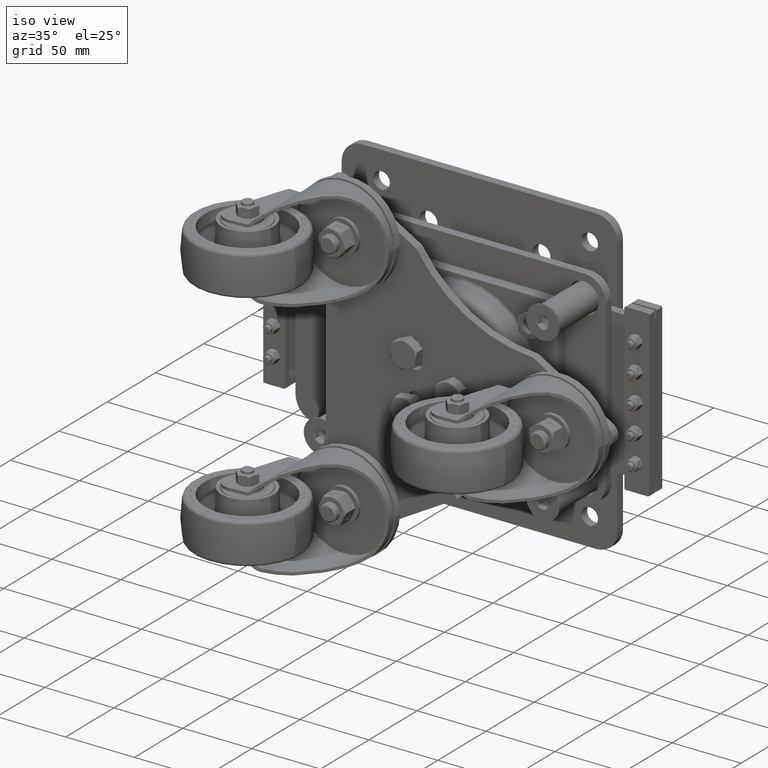
[diagram: clean part render]
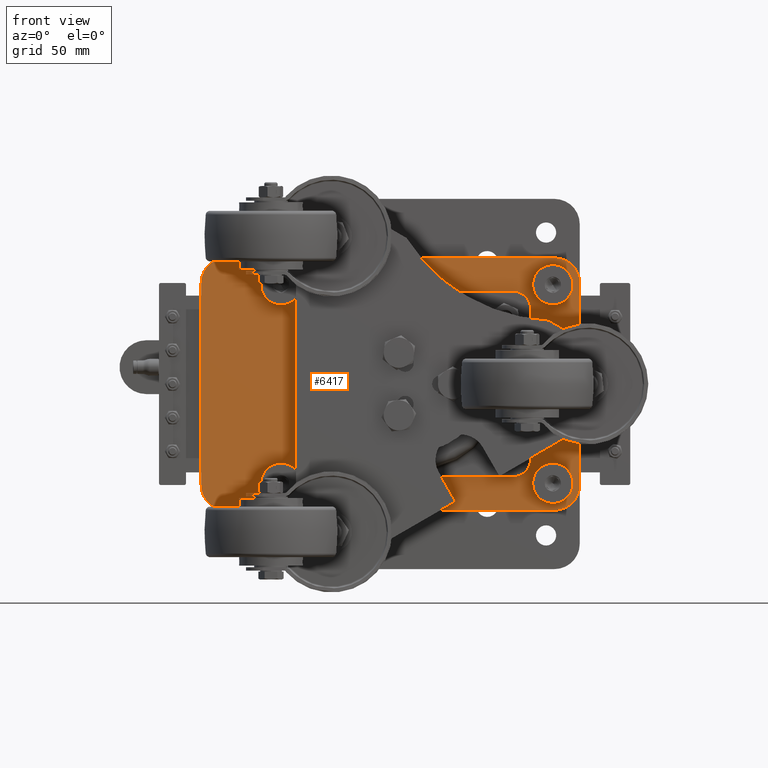
[diagram: tour spotlight — one face highlighted and labeled with its STEP entity id]
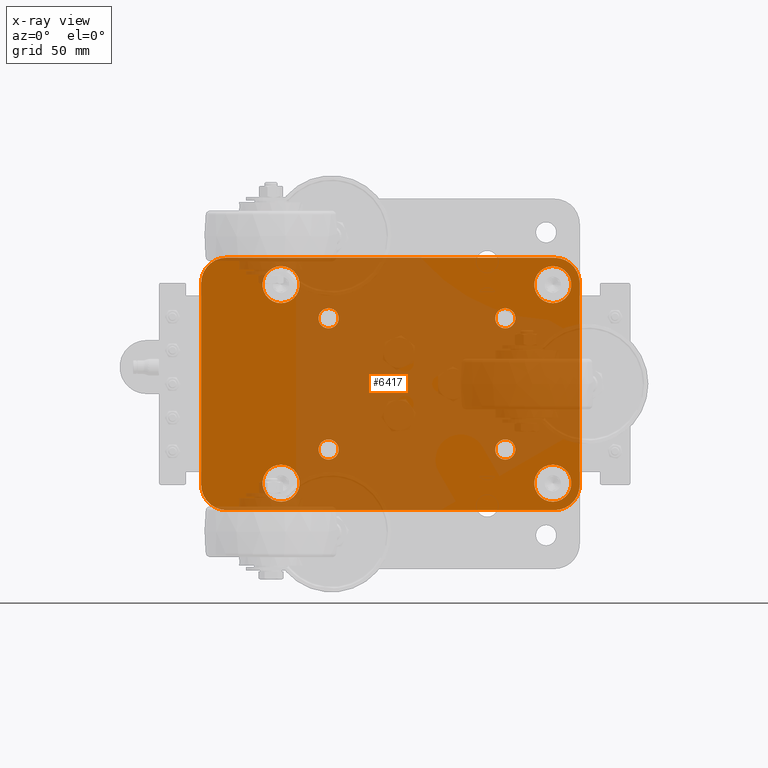
[diagram: x-ray of the same camera — body ghosted, this tour face saturated]
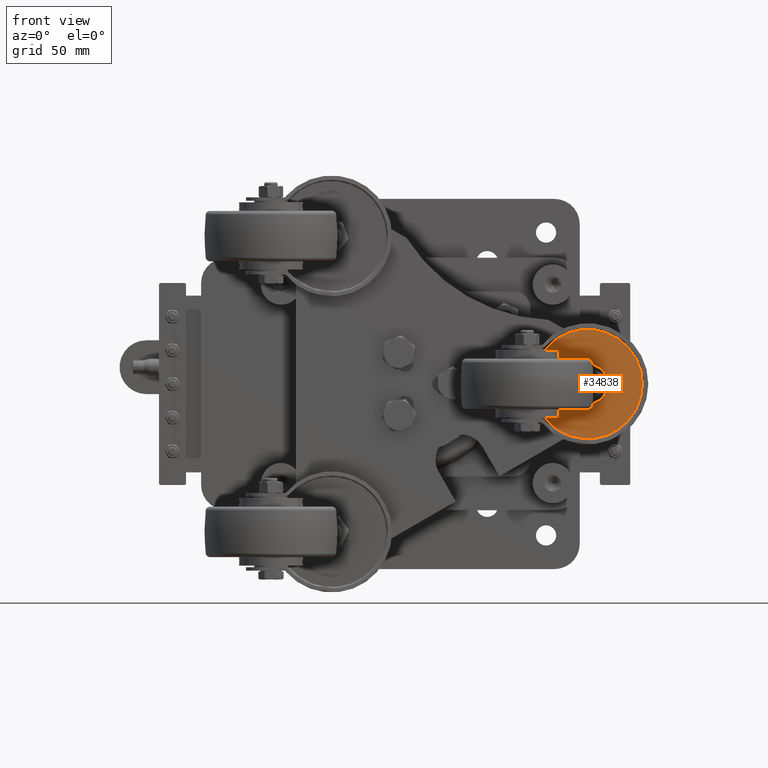
[diagram: tour spotlight — one face highlighted and labeled with its STEP entity id]
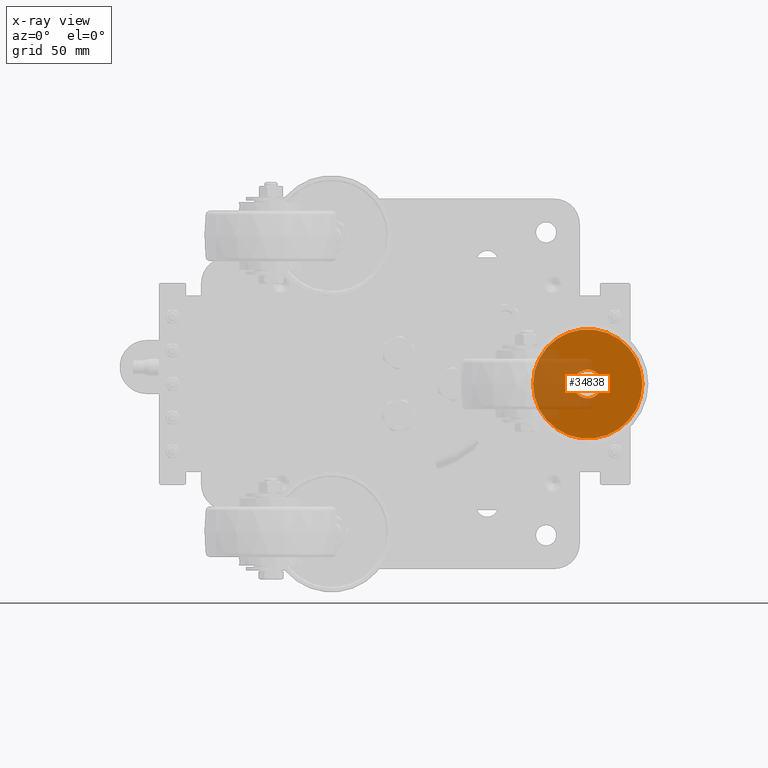
[diagram: x-ray of the same camera — body ghosted, this tour face saturated]
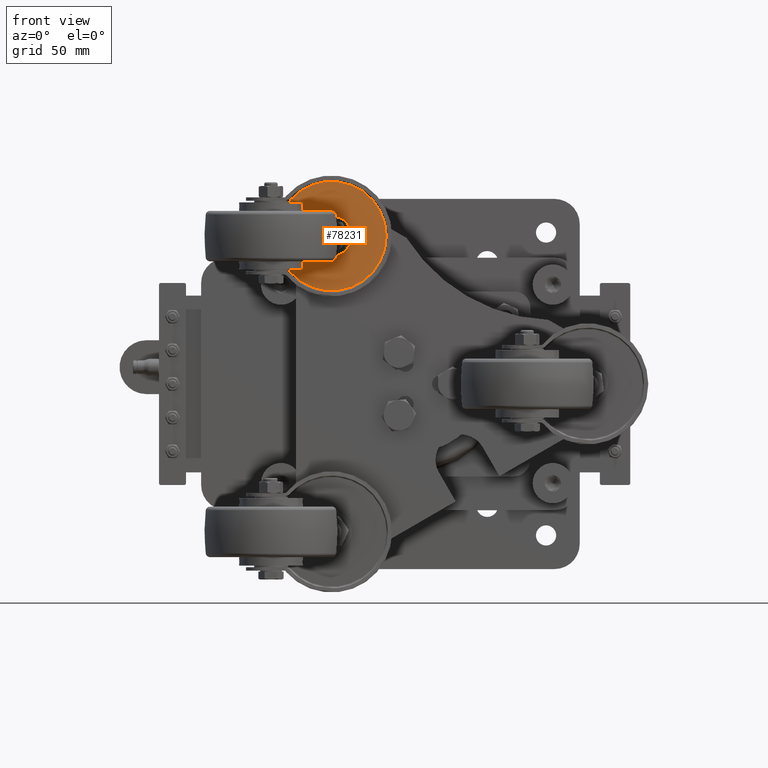
[diagram: tour spotlight — one face highlighted and labeled with its STEP entity id]
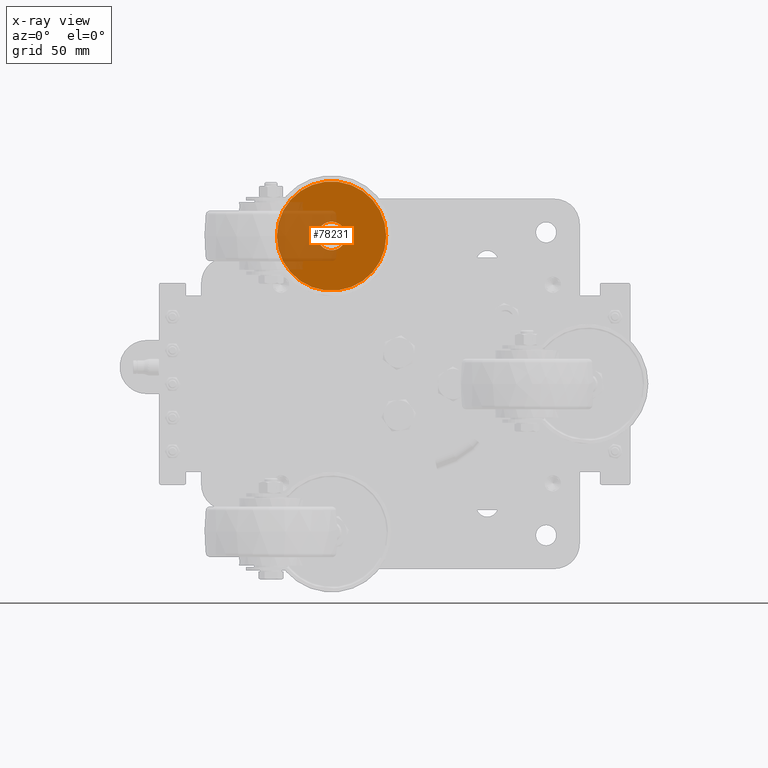
[diagram: x-ray of the same camera — body ghosted, this tour face saturated]
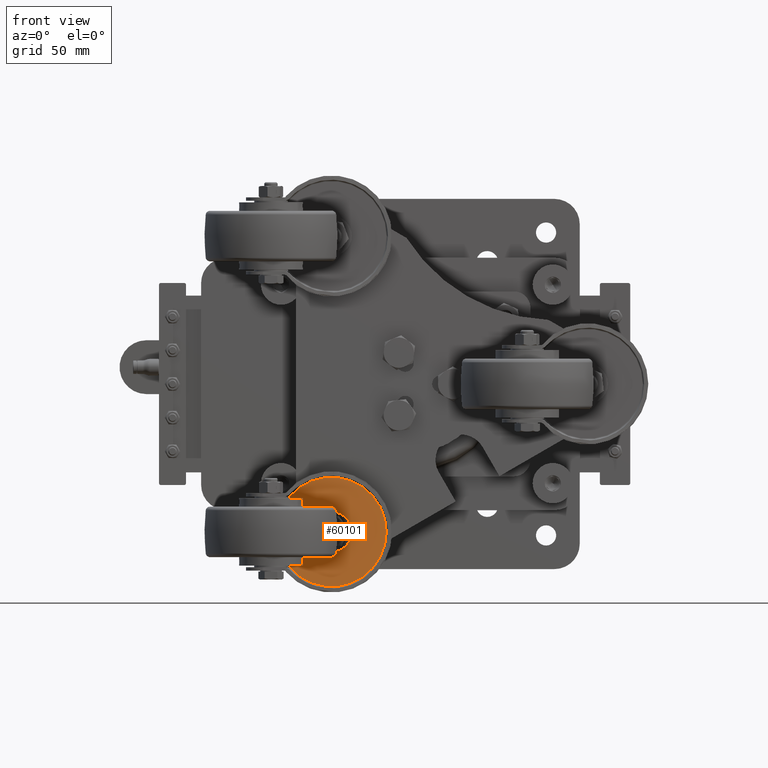
[diagram: tour spotlight — one face highlighted and labeled with its STEP entity id]
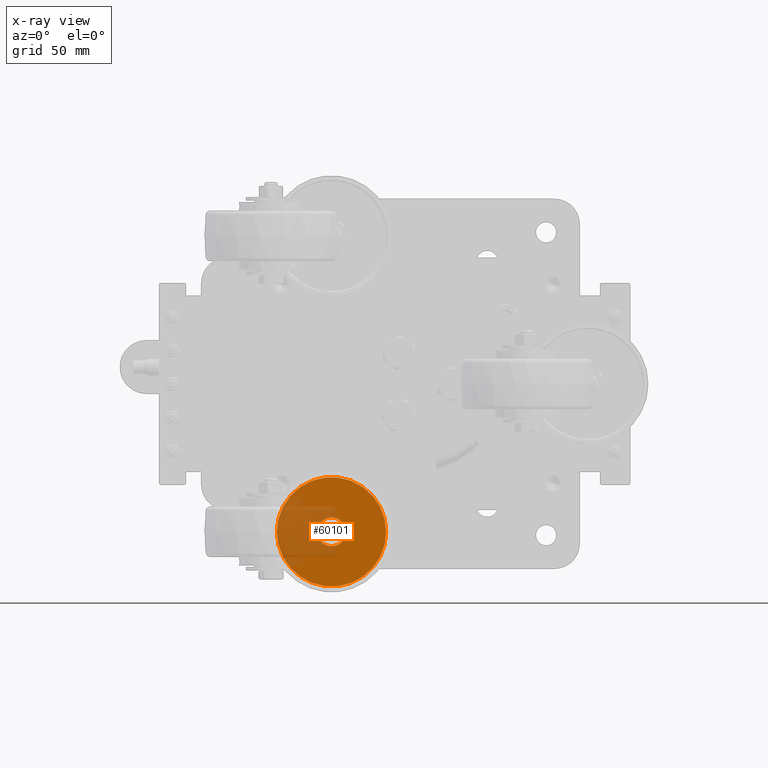
[diagram: x-ray of the same camera — body ghosted, this tour face saturated]
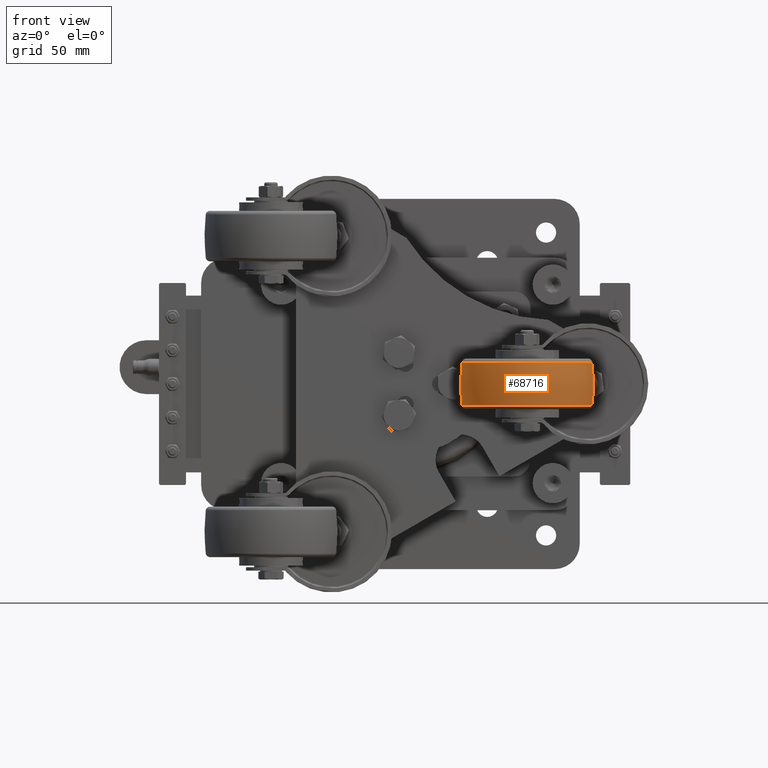
[diagram: tour spotlight — one face highlighted and labeled with its STEP entity id]
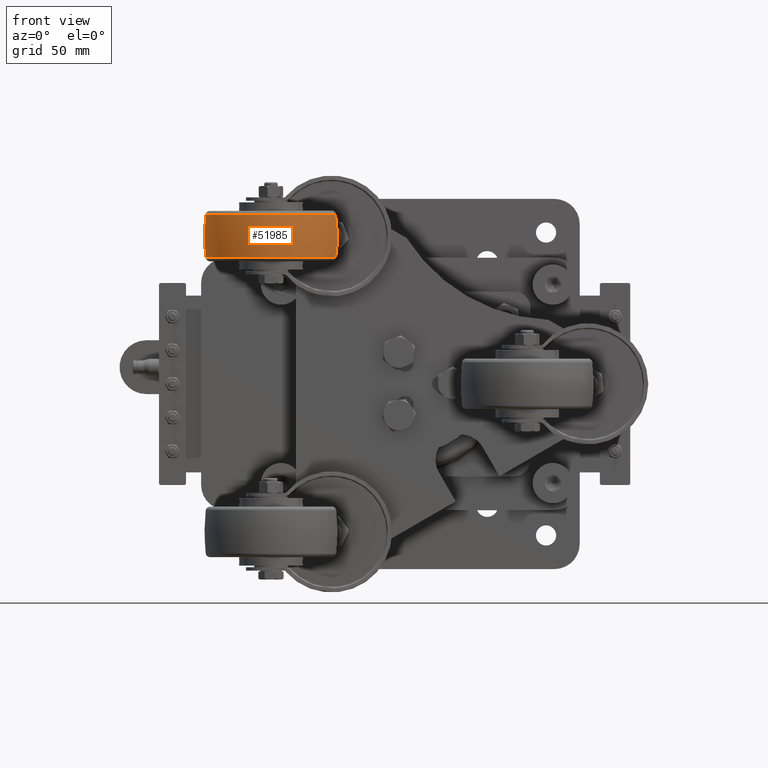
[diagram: tour spotlight — one face highlighted and labeled with its STEP entity id]
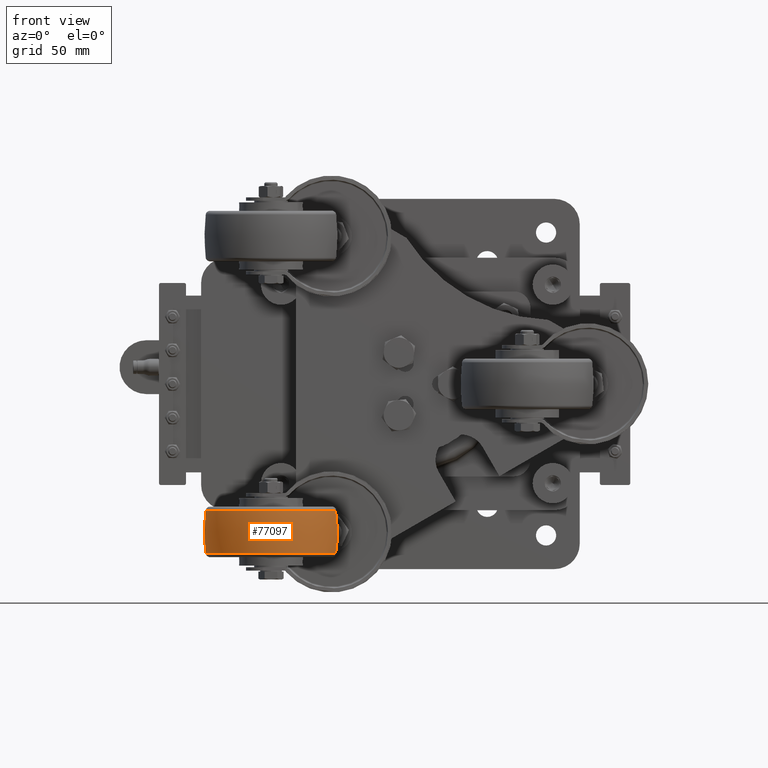
[diagram: tour spotlight — one face highlighted and labeled with its STEP entity id]
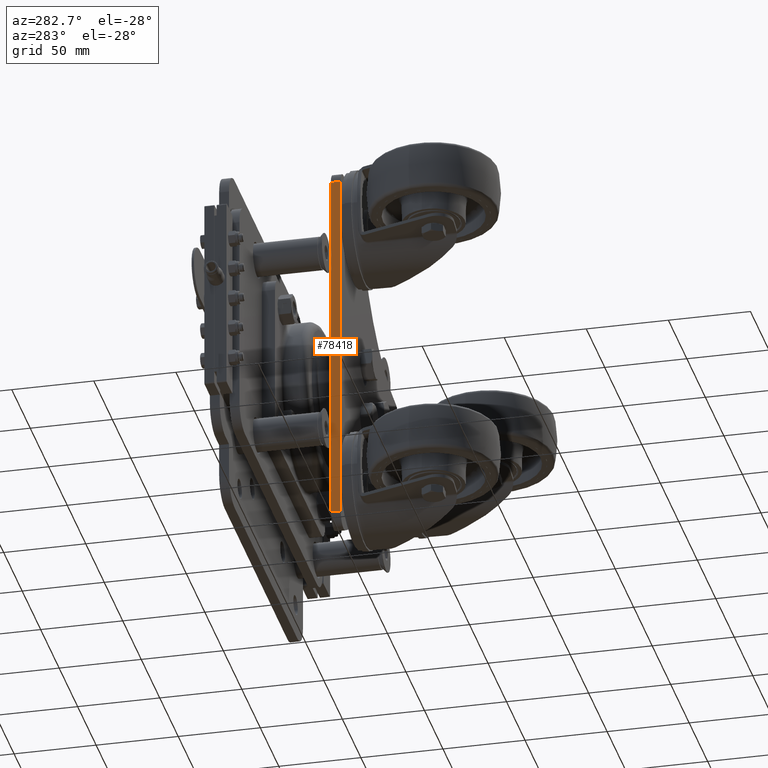
[diagram: tour spotlight — one face highlighted and labeled with its STEP entity id]
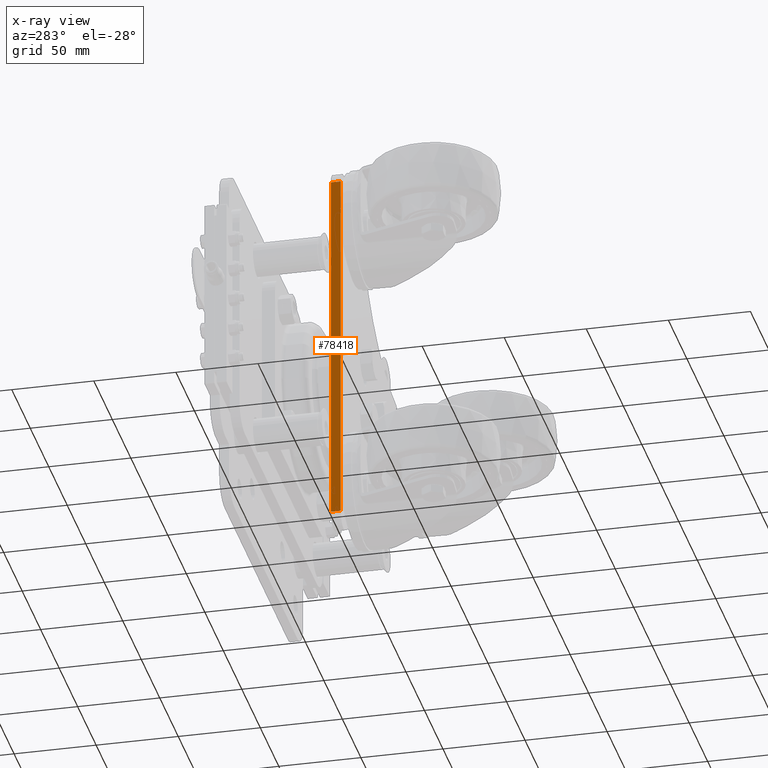
[diagram: x-ray of the same camera — body ghosted, this tour face saturated]
A machine part: a face-by-face anatomy tour. The part has 2864 B-rep faces; the first image is the clean iso view, then the 8 largest visible faces are spotlighted one at a time (largest first), each with its STEP entity span.

Face 1 — front view, entity #6417. An x-ray twin of the same camera follows (body ghosted, this face saturated) — the face is partly hidden behind the body. In plain terms, the highlighted planar face has unit normal (0, 1, 0).
Definition (entity closure, byte-faithful):
#1127 = CARTESIAN_POINT ( 'NONE',  ( -52.50000000000000000, -4.336808689942017736E-15, -45.00000000000000000 ) ) ;
#1332 = ORIENTED_EDGE ( 'NONE', *, *, #27570, .F. ) ;
#1638 = VERTEX_POINT ( 'NONE', #27940 ) ;
#2996 = DIRECTION ( 'NONE',  ( 0.0000000000000000000, 0.0000000000000000000, 1.000000000000000000 ) ) ;
#3386 = DIRECTION ( 'NONE',  ( 1.000000000000000000, 0.0000000000000000000, 0.0000000000000000000 ) ) ;
#3740 = DIRECTION ( 'NONE',  ( 0.0000000000000000000, 0.0000000000000000000, 1.000000000000000000 ) ) ;
#3835 = VERTEX_POINT ( 'NONE', #114899 ) ;
#3969 = ORIENTED_EDGE ( 'NONE', *, *, #24493, .T. ) ;
#4541 = DIRECTION ( 'NONE',  ( 0.0000000000000000000, 0.0000000000000000000, 1.000000000000000000 ) ) ;
#4922 = AXIS2_PLACEMENT_3D ( 'NONE', #60173, #91754, #70718 ) ;
#5936 = EDGE_CURVE ( 'NONE', #65091, #65696, #70080, .T. ) ;
#6417 = ADVANCED_FACE ( 'NONE', ( #109070, #82409, #121604, #105946, #8888, #77799, #126264, #99610, #29198 ), #73896, .F. ) ;
#8888 = FACE_BOUND ( 'NONE', #105613, .T. ) ;
#9608 = EDGE_CURVE ( 'NONE', #11406, #22576, #49786, .T. ) ;
#10467 = CARTESIAN_POINT ( 'NONE',  ( 96.75000000000000000, 0.0000000000000000000, -75.00000000000000000 ) ) ;
#10719 = LINE ( 'NONE', #53959, #31048 ) ;
#10748 = CARTESIAN_POINT ( 'NONE',  ( -52.50000000000000000, -4.336808689942017736E-15, -39.00000000000000000 ) ) ;
#11406 = VERTEX_POINT ( 'NONE', #54936 ) ;
#11496 = CIRCLE ( 'NONE', #60586, 10.99999999999999645 ) ;
#11829 = VECTOR ( 'NONE', #121593, 1000.000000000000000 ) ;
#12249 = DIRECTION ( 'NONE',  ( -0.0000000000000000000, 1.000000000000000000, -0.0000000000000000000 ) ) ;
#12390 = VERTEX_POINT ( 'NONE', #106396 ) ;
#12480 = DIRECTION ( 'NONE',  ( 0.0000000000000000000, 0.0000000000000000000, 1.000000000000000000 ) ) ;
#13079 = EDGE_LOOP ( 'NONE', ( #102315, #38669, #74152, #118838, #17540, #54407, #1332, #116908 ) ) ;
#13193 = DIRECTION ( 'NONE',  ( 0.0000000000000000000, 0.0000000000000000000, -1.000000000000000000 ) ) ;
#14009 = EDGE_CURVE ( 'NONE', #128791, #20257, #97398, .T. ) ;
#15285 = CARTESIAN_POINT ( 'NONE',  ( 81.75000000000000000, 0.0000000000000000000, -60.00000000000001421 ) ) ;
#15720 = DIRECTION ( 'NONE',  ( -0.0000000000000000000, -1.000000000000000000, -0.0000000000000000000 ) ) ;
#16143 = CARTESIAN_POINT ( 'NONE',  ( -113.2500000000000142, 0.0000000000000000000, -75.00000000000000000 ) ) ;
#16407 = DIRECTION ( 'NONE',  ( -0.0000000000000000000, 1.000000000000000000, -0.0000000000000000000 ) ) ;
#16897 = LINE ( 'NONE', #28317, #49688 ) ;
#17074 = ORIENTED_EDGE ( 'NONE', *, *, #19292, .T. ) ;
#17540 = ORIENTED_EDGE ( 'NONE', *, *, #58724, .F. ) ;
#17555 = CARTESIAN_POINT ( 'NONE',  ( 96.75000000000000000, 0.0000000000000000000, -60.00000000000001421 ) ) ;
#17657 = EDGE_CURVE ( 'NONE', #52230, #111669, #124921, .T. ) ;
#18105 = DIRECTION ( 'NONE',  ( -0.0000000000000000000, 1.000000000000000000, -0.0000000000000000000 ) ) ;
#19059 = CARTESIAN_POINT ( 'NONE',  ( -80.75000000000000000, -5.204170427930421283E-15, 59.00000000000000711 ) ) ;
#19292 = EDGE_CURVE ( 'NONE', #3835, #1638, #28406, .T. ) ;
#19508 = EDGE_CURVE ( 'NONE', #118038, #85430, #116031, .T. ) ;
#20081 = VERTEX_POINT ( 'NONE', #48821 ) ;
#20257 = VERTEX_POINT ( 'NONE', #28075 ) ;
#20697 = ORIENTED_EDGE ( 'NONE', *, *, #14009, .T. ) ;
#20708 = EDGE_CURVE ( 'NONE', #22576, #11406, #28499, .T. ) ;
#20960 = AXIS2_PLACEMENT_3D ( 'NONE', #77524, #47287, #97207 ) ;
#22576 = VERTEX_POINT ( 'NONE', #1127 ) ;
#22806 = CARTESIAN_POINT ( 'NONE',  ( 96.75000000000000000, 0.0000000000000000000, 75.00000000000000000 ) ) ;
#23585 = DIRECTION ( 'NONE',  ( -0.0000000000000000000, 1.000000000000000000, -0.0000000000000000000 ) ) ;
#24493 = EDGE_CURVE ( 'NONE', #1638, #3835, #99111, .T. ) ;
#25441 = DIRECTION ( 'NONE',  ( -0.0000000000000000000, 1.000000000000000000, -0.0000000000000000000 ) ) ;
#27570 = EDGE_CURVE ( 'NONE', #56316, #127113, #82243, .T. ) ;
#27686 = CARTESIAN_POINT ( 'NONE',  ( -80.75000000000000000, -5.204170427930421283E-15, 70.00000000000000000 ) ) ;
#27940 = CARTESIAN_POINT ( 'NONE',  ( 52.50000000000000000, -4.336808689942017736E-15, -45.00000000000000000 ) ) ;
#28075 = CARTESIAN_POINT ( 'NONE',  ( 80.75000000000000000, -5.204170427930421283E-15, 70.00000000000000000 ) ) ;
#28159 = ORIENTED_EDGE ( 'NONE', *, *, #30075, .T. ) ;
#28317 = CARTESIAN_POINT ( 'NONE',  ( -128.2500000000000000, 0.0000000000000000000, -75.00000000000000000 ) ) ;
#28406 = CIRCLE ( 'NONE', #20960, 5.999999999999998224 ) ;
#28499 = CIRCLE ( 'NONE', #100070, 5.999999999999998224 ) ;
#28602 = AXIS2_PLACEMENT_3D ( 'NONE', #44564, #84834, #124239 ) ;
#28925 = AXIS2_PLACEMENT_3D ( 'NONE', #19059, #29553, #60106 ) ;
#29015 = CARTESIAN_POINT ( 'NONE',  ( 80.75000000000000000, -5.204170427930421283E-15, 59.00000000000000711 ) ) ;
#29198 = FACE_OUTER_BOUND ( 'NONE', #13079, .T. ) ;
#29553 = DIRECTION ( 'NONE',  ( -0.0000000000000000000, 1.000000000000000000, -0.0000000000000000000 ) ) ;
#29782 = CIRCLE ( 'NONE', #126029, 15.00000000000000000 ) ;
#29802 = VERTEX_POINT ( 'NONE', #27686 ) ;
#30075 = EDGE_CURVE ( 'NONE', #29802, #119515, #51993, .T. ) ;
#30616 = DIRECTION ( 'NONE',  ( -0.0000000000000000000, -1.000000000000000000, -0.0000000000000000000 ) ) ;
#31048 = VECTOR ( 'NONE', #3386, 1000.000000000000000 ) ;
#31158 = DIRECTION ( 'NONE',  ( 0.0000000000000000000, 0.0000000000000000000, 1.000000000000000000 ) ) ;
#32120 = EDGE_CURVE ( 'NONE', #74192, #48107, #129569, .T. ) ;
#32545 = DIRECTION ( 'NONE',  ( 0.0000000000000000000, 0.0000000000000000000, 1.000000000000000000 ) ) ;
#32882 = EDGE_CURVE ( 'NONE', #48107, #74192, #113381, .T. ) ;
#34298 = CARTESIAN_POINT ( 'NONE',  ( -52.50000000000000000, -4.336808689942017736E-15, 39.00000000000000000 ) ) ;
#34436 = CARTESIAN_POINT ( 'NONE',  ( -113.2500000000000000, 0.0000000000000000000, 75.00000000000000000 ) ) ;
#36487 = DIRECTION ( 'NONE',  ( 0.0000000000000000000, 0.0000000000000000000, 1.000000000000000000 ) ) ;
#38068 = CIRCLE ( 'NONE', #28925, 11.00000000000000355 ) ;
#38669 = ORIENTED_EDGE ( 'NONE', *, *, #93869, .T. ) ;
#39311 = ORIENTED_EDGE ( 'NONE', *, *, #9608, .T. ) ;
#39563 = EDGE_CURVE ( 'NONE', #119515, #29802, #38068, .T. ) ;
#41074 = DIRECTION ( 'NONE',  ( -0.0000000000000000000, -1.000000000000000000, -0.0000000000000000000 ) ) ;
#41084 = DIRECTION ( 'NONE',  ( 0.0000000000000000000, 0.0000000000000000000, 1.000000000000000000 ) ) ;
#41123 = EDGE_CURVE ( 'NONE', #56316, #111669, #114273, .T. ) ;
#41528 = DIRECTION ( 'NONE',  ( 0.0000000000000000000, 0.0000000000000000000, 1.000000000000000000 ) ) ;
#42293 = AXIS2_PLACEMENT_3D ( 'NONE', #101030, #112392, #41084 ) ;
#43341 = CARTESIAN_POINT ( 'NONE',  ( 52.50000000000000000, -4.336808689942017736E-15, 33.00000000000000000 ) ) ;
#44564 = CARTESIAN_POINT ( 'NONE',  ( 0.0000000000000000000, 0.0000000000000000000, 0.0000000000000000000 ) ) ;
#45573 = AXIS2_PLACEMENT_3D ( 'NONE', #51548, #12249, #92321 ) ;
#45922 = DIRECTION ( 'NONE',  ( 0.0000000000000000000, 0.0000000000000000000, 1.000000000000000000 ) ) ;
#46079 = DIRECTION ( 'NONE',  ( 0.0000000000000000000, 0.0000000000000000000, 1.000000000000000000 ) ) ;
#46166 = EDGE_CURVE ( 'NONE', #127101, #127113, #76957, .T. ) ;
#46232 = AXIS2_PLACEMENT_3D ( 'NONE', #115961, #25441, #45922 ) ;
#47287 = DIRECTION ( 'NONE',  ( -0.0000000000000000000, 1.000000000000000000, -0.0000000000000000000 ) ) ;
#48107 = VERTEX_POINT ( 'NONE', #115629 ) ;
#48522 = VERTEX_POINT ( 'NONE', #34436 ) ;
#48821 = CARTESIAN_POINT ( 'NONE',  ( -52.50000000000000000, -4.336808689942017736E-15, 33.00000000000000000 ) ) ;
#48822 = ORIENTED_EDGE ( 'NONE', *, *, #92940, .T. ) ;
#48942 = ORIENTED_EDGE ( 'NONE', *, *, #32882, .T. ) ;
#49688 = VECTOR ( 'NONE', #86545, 1000.000000000000000 ) ;
#49786 = CIRCLE ( 'NONE', #70312, 5.999999999999998224 ) ;
#51197 = DIRECTION ( 'NONE',  ( -0.0000000000000000000, 1.000000000000000000, -0.0000000000000000000 ) ) ;
#51548 = CARTESIAN_POINT ( 'NONE',  ( -80.75000000000000000, -5.204170427930421283E-15, 59.00000000000000711 ) ) ;
#51993 = CIRCLE ( 'NONE', #45573, 11.00000000000000355 ) ;
#52230 = VERTEX_POINT ( 'NONE', #68203 ) ;
#52893 = VERTEX_POINT ( 'NONE', #61878 ) ;
#53595 = AXIS2_PLACEMENT_3D ( 'NONE', #121637, #112009, #101486 ) ;
#53774 = ORIENTED_EDGE ( 'NONE', *, *, #32120, .T. ) ;
#53959 = CARTESIAN_POINT ( 'NONE',  ( -128.2500000000000000, 0.0000000000000000000, 75.00000000000000000 ) ) ;
#54407 = ORIENTED_EDGE ( 'NONE', *, *, #46166, .T. ) ;
#54936 = CARTESIAN_POINT ( 'NONE',  ( -52.50000000000000000, -4.336808689942017736E-15, -33.00000000000000000 ) ) ;
#55157 = AXIS2_PLACEMENT_3D ( 'NONE', #69596, #30616, #41528 ) ;
#56316 = VERTEX_POINT ( 'NONE', #64396 ) ;
#57723 = AXIS2_PLACEMENT_3D ( 'NONE', #123153, #83301, #3740 ) ;
#58724 = EDGE_CURVE ( 'NONE', #127101, #12390, #16897, .T. ) ;
#60106 = DIRECTION ( 'NONE',  ( 0.0000000000000000000, 0.0000000000000000000, 1.000000000000000000 ) ) ;
#60173 = CARTESIAN_POINT ( 'NONE',  ( 81.75000000000001421, 0.0000000000000000000, 60.00000000000000000 ) ) ;
#60546 = CIRCLE ( 'NONE', #4922, 15.00000000000000000 ) ;
#60586 = AXIS2_PLACEMENT_3D ( 'NONE', #74099, #123547, #32545 ) ;
#61576 = EDGE_LOOP ( 'NONE', ( #74959, #48822 ) ) ;
#61878 = CARTESIAN_POINT ( 'NONE',  ( 81.75000000000001421, 0.0000000000000000000, 75.00000000000000000 ) ) ;
#63301 = CIRCLE ( 'NONE', #91609, 11.00000000000000355 ) ;
#63868 = VECTOR ( 'NONE', #13193, 1000.000000000000000 ) ;
#64374 = CARTESIAN_POINT ( 'NONE',  ( 80.75000000000000000, -5.204170427930421283E-15, -70.00000000000000000 ) ) ;
#64396 = CARTESIAN_POINT ( 'NONE',  ( 81.75000000000000000, 0.0000000000000000000, -75.00000000000000000 ) ) ;
#64465 = DIRECTION ( 'NONE',  ( -0.0000000000000000000, 1.000000000000000000, -0.0000000000000000000 ) ) ;
#65091 = VERTEX_POINT ( 'NONE', #99854 ) ;
#65696 = VERTEX_POINT ( 'NONE', #43341 ) ;
#65981 = CARTESIAN_POINT ( 'NONE',  ( -128.2500000000000000, 0.0000000000000000000, -60.00000000000000000 ) ) ;
#66122 = AXIS2_PLACEMENT_3D ( 'NONE', #29015, #18105, #117837 ) ;
#66801 = EDGE_LOOP ( 'NONE', ( #72441, #86470 ) ) ;
#68203 = CARTESIAN_POINT ( 'NONE',  ( 96.75000000000000000, 0.0000000000000000000, 60.00000000000000000 ) ) ;
#69596 = CARTESIAN_POINT ( 'NONE',  ( -113.2500000000000142, 0.0000000000000000000, -60.00000000000000000 ) ) ;
#70080 = CIRCLE ( 'NONE', #84718, 5.999999999999998224 ) ;
#70312 = AXIS2_PLACEMENT_3D ( 'NONE', #10748, #71543, #12480 ) ;
#70718 = DIRECTION ( 'NONE',  ( 0.0000000000000000000, 0.0000000000000000000, 1.000000000000000000 ) ) ;
#71543 = DIRECTION ( 'NONE',  ( -0.0000000000000000000, 1.000000000000000000, -0.0000000000000000000 ) ) ;
#72441 = ORIENTED_EDGE ( 'NONE', *, *, #90404, .T. ) ;
#73896 = PLANE ( 'NONE',  #28602 ) ;
#74099 = CARTESIAN_POINT ( 'NONE',  ( 80.75000000000000000, -5.204170427930421283E-15, -59.00000000000000711 ) ) ;
#74152 = ORIENTED_EDGE ( 'NONE', *, *, #107761, .F. ) ;
#74192 = VERTEX_POINT ( 'NONE', #77012 ) ;
#74688 = AXIS2_PLACEMENT_3D ( 'NONE', #34298, #64465, #4541 ) ;
#74959 = ORIENTED_EDGE ( 'NONE', *, *, #5936, .T. ) ;
#76369 = ORIENTED_EDGE ( 'NONE', *, *, #39563, .T. ) ;
#76512 = EDGE_LOOP ( 'NONE', ( #121011, #90671 ) ) ;
#76957 = CIRCLE ( 'NONE', #55157, 15.00000000000000000 ) ;
#77012 = CARTESIAN_POINT ( 'NONE',  ( -80.75000000000000000, -5.204170427930421283E-15, -70.00000000000000000 ) ) ;
#77524 = CARTESIAN_POINT ( 'NONE',  ( 52.50000000000000000, -4.336808689942017736E-15, -39.00000000000000000 ) ) ;
#77799 = FACE_BOUND ( 'NONE', #76512, .T. ) ;
#80074 = EDGE_CURVE ( 'NONE', #20081, #90191, #111181, .T. ) ;
#82243 = LINE ( 'NONE', #10467, #11829 ) ;
#82409 = FACE_BOUND ( 'NONE', #66801, .T. ) ;
#83301 = DIRECTION ( 'NONE',  ( -0.0000000000000000000, 1.000000000000000000, -0.0000000000000000000 ) ) ;
#83467 = CARTESIAN_POINT ( 'NONE',  ( -52.50000000000000000, -4.336808689942017736E-15, -39.00000000000000000 ) ) ;
#83670 = AXIS2_PLACEMENT_3D ( 'NONE', #15285, #15720, #96621 ) ;
#84037 = DIRECTION ( 'NONE',  ( 0.0000000000000000000, 0.0000000000000000000, 1.000000000000000000 ) ) ;
#84718 = AXIS2_PLACEMENT_3D ( 'NONE', #113450, #51197, #31158 ) ;
#84834 = DIRECTION ( 'NONE',  ( 0.0000000000000000000, 1.000000000000000000, 0.0000000000000000000 ) ) ;
#85430 = VERTEX_POINT ( 'NONE', #64374 ) ;
#86374 = DIRECTION ( 'NONE',  ( -0.0000000000000000000, 1.000000000000000000, -0.0000000000000000000 ) ) ;
#86470 = ORIENTED_EDGE ( 'NONE', *, *, #80074, .T. ) ;
#86545 = DIRECTION ( 'NONE',  ( 0.0000000000000000000, 0.0000000000000000000, 1.000000000000000000 ) ) ;
#87049 = ORIENTED_EDGE ( 'NONE', *, *, #20708, .T. ) ;
#90191 = VERTEX_POINT ( 'NONE', #108709 ) ;
#90317 = CARTESIAN_POINT ( 'NONE',  ( 80.75000000000000000, -5.204170427930421283E-15, -48.00000000000000711 ) ) ;
#90404 = EDGE_CURVE ( 'NONE', #90191, #20081, #95436, .T. ) ;
#90671 = ORIENTED_EDGE ( 'NONE', *, *, #96917, .T. ) ;
#91431 = CARTESIAN_POINT ( 'NONE',  ( -113.2500000000000000, 0.0000000000000000000, 60.00000000000001421 ) ) ;
#91609 = AXIS2_PLACEMENT_3D ( 'NONE', #113814, #116875, #84037 ) ;
#91754 = DIRECTION ( 'NONE',  ( -0.0000000000000000000, -1.000000000000000000, -0.0000000000000000000 ) ) ;
#92321 = DIRECTION ( 'NONE',  ( 0.0000000000000000000, 0.0000000000000000000, 1.000000000000000000 ) ) ;
#92940 = EDGE_CURVE ( 'NONE', #65696, #65091, #125200, .T. ) ;
#93869 = EDGE_CURVE ( 'NONE', #52230, #52893, #60546, .T. ) ;
#95436 = CIRCLE ( 'NONE', #74688, 5.999999999999998224 ) ;
#96166 = AXIS2_PLACEMENT_3D ( 'NONE', #114809, #86374, #36487 ) ;
#96621 = DIRECTION ( 'NONE',  ( 0.0000000000000000000, 0.0000000000000000000, 1.000000000000000000 ) ) ;
#96917 = EDGE_CURVE ( 'NONE', #85430, #118038, #11496, .T. ) ;
#97207 = DIRECTION ( 'NONE',  ( 0.0000000000000000000, 0.0000000000000000000, 1.000000000000000000 ) ) ;
#97398 = CIRCLE ( 'NONE', #66122, 11.00000000000000355 ) ;
#99111 = CIRCLE ( 'NONE', #46232, 5.999999999999998224 ) ;
#99610 = FACE_BOUND ( 'NONE', #124838, .T. ) ;
#99854 = CARTESIAN_POINT ( 'NONE',  ( 52.50000000000000000, -4.336808689942017736E-15, 45.00000000000000000 ) ) ;
#100070 = AXIS2_PLACEMENT_3D ( 'NONE', #83467, #23585, #125066 ) ;
#100378 = AXIS2_PLACEMENT_3D ( 'NONE', #106122, #16407, #46079 ) ;
#101030 = CARTESIAN_POINT ( 'NONE',  ( -52.50000000000000000, -4.336808689942017736E-15, 39.00000000000000000 ) ) ;
#101486 = DIRECTION ( 'NONE',  ( 0.0000000000000000000, 0.0000000000000000000, 1.000000000000000000 ) ) ;
#101543 = EDGE_LOOP ( 'NONE', ( #17074, #3969 ) ) ;
#102315 = ORIENTED_EDGE ( 'NONE', *, *, #17657, .F. ) ;
#105613 = EDGE_LOOP ( 'NONE', ( #117727, #20697 ) ) ;
#105946 = FACE_BOUND ( 'NONE', #127684, .T. ) ;
#106122 = CARTESIAN_POINT ( 'NONE',  ( -80.75000000000000000, -5.204170427930421283E-15, -59.00000000000000711 ) ) ;
#106396 = CARTESIAN_POINT ( 'NONE',  ( -128.2500000000000000, 0.0000000000000000000, 60.00000000000001421 ) ) ;
#107761 = EDGE_CURVE ( 'NONE', #48522, #52893, #10719, .T. ) ;
#108329 = CARTESIAN_POINT ( 'NONE',  ( -80.75000000000000000, -5.204170427930421283E-15, 48.00000000000000711 ) ) ;
#108709 = CARTESIAN_POINT ( 'NONE',  ( -52.50000000000000000, -4.336808689942017736E-15, 45.00000000000000000 ) ) ;
#108868 = CARTESIAN_POINT ( 'NONE',  ( 80.75000000000000000, -5.204170427930421283E-15, 48.00000000000000711 ) ) ;
#109070 = FACE_BOUND ( 'NONE', #61576, .T. ) ;
#110353 = EDGE_CURVE ( 'NONE', #48522, #12390, #29782, .T. ) ;
#111181 = CIRCLE ( 'NONE', #42293, 5.999999999999998224 ) ;
#111669 = VERTEX_POINT ( 'NONE', #17555 ) ;
#112009 = DIRECTION ( 'NONE',  ( -0.0000000000000000000, 1.000000000000000000, -0.0000000000000000000 ) ) ;
#112392 = DIRECTION ( 'NONE',  ( -0.0000000000000000000, 1.000000000000000000, -0.0000000000000000000 ) ) ;
#113381 = CIRCLE ( 'NONE', #57723, 10.99999999999999645 ) ;
#113450 = CARTESIAN_POINT ( 'NONE',  ( 52.50000000000000000, -4.336808689942017736E-15, 39.00000000000000000 ) ) ;
#113814 = CARTESIAN_POINT ( 'NONE',  ( 80.75000000000000000, -5.204170427930421283E-15, 59.00000000000000711 ) ) ;
#114273 = CIRCLE ( 'NONE', #83670, 15.00000000000000000 ) ;
#114809 = CARTESIAN_POINT ( 'NONE',  ( 52.50000000000000000, -4.336808689942017736E-15, 39.00000000000000000 ) ) ;
#114899 = CARTESIAN_POINT ( 'NONE',  ( 52.50000000000000000, -4.336808689942017736E-15, -33.00000000000000000 ) ) ;
#115629 = CARTESIAN_POINT ( 'NONE',  ( -80.75000000000000000, -5.204170427930421283E-15, -48.00000000000000711 ) ) ;
#115961 = CARTESIAN_POINT ( 'NONE',  ( 52.50000000000000000, -4.336808689942017736E-15, -39.00000000000000000 ) ) ;
#116031 = CIRCLE ( 'NONE', #53595, 10.99999999999999645 ) ;
#116875 = DIRECTION ( 'NONE',  ( -0.0000000000000000000, 1.000000000000000000, -0.0000000000000000000 ) ) ;
#116908 = ORIENTED_EDGE ( 'NONE', *, *, #41123, .T. ) ;
#117727 = ORIENTED_EDGE ( 'NONE', *, *, #123075, .T. ) ;
#117837 = DIRECTION ( 'NONE',  ( 0.0000000000000000000, 0.0000000000000000000, 1.000000000000000000 ) ) ;
#118038 = VERTEX_POINT ( 'NONE', #90317 ) ;
#118838 = ORIENTED_EDGE ( 'NONE', *, *, #110353, .T. ) ;
#119515 = VERTEX_POINT ( 'NONE', #108329 ) ;
#121011 = ORIENTED_EDGE ( 'NONE', *, *, #19508, .T. ) ;
#121593 = DIRECTION ( 'NONE',  ( -1.000000000000000000, 0.0000000000000000000, 0.0000000000000000000 ) ) ;
#121604 = FACE_BOUND ( 'NONE', #101543, .T. ) ;
#121637 = CARTESIAN_POINT ( 'NONE',  ( 80.75000000000000000, -5.204170427930421283E-15, -59.00000000000000711 ) ) ;
#122657 = EDGE_LOOP ( 'NONE', ( #48942, #53774 ) ) ;
#123075 = EDGE_CURVE ( 'NONE', #20257, #128791, #63301, .T. ) ;
#123153 = CARTESIAN_POINT ( 'NONE',  ( -80.75000000000000000, -5.204170427930421283E-15, -59.00000000000000711 ) ) ;
#123547 = DIRECTION ( 'NONE',  ( -0.0000000000000000000, 1.000000000000000000, -0.0000000000000000000 ) ) ;
#124239 = DIRECTION ( 'NONE',  ( 0.0000000000000000000, -0.0000000000000000000, 1.000000000000000000 ) ) ;
#124838 = EDGE_LOOP ( 'NONE', ( #28159, #76369 ) ) ;
#124921 = LINE ( 'NONE', #22806, #63868 ) ;
#125066 = DIRECTION ( 'NONE',  ( 0.0000000000000000000, 0.0000000000000000000, 1.000000000000000000 ) ) ;
#125200 = CIRCLE ( 'NONE', #96166, 5.999999999999998224 ) ;
#126029 = AXIS2_PLACEMENT_3D ( 'NONE', #91431, #41074, #2996 ) ;
#126264 = FACE_BOUND ( 'NONE', #122657, .T. ) ;
#127101 = VERTEX_POINT ( 'NONE', #65981 ) ;
#127113 = VERTEX_POINT ( 'NONE', #16143 ) ;
#127684 = EDGE_LOOP ( 'NONE', ( #39311, #87049 ) ) ;
#128791 = VERTEX_POINT ( 'NONE', #108868 ) ;
#129569 = CIRCLE ( 'NONE', #100378, 10.99999999999999645 ) ;

Face 2 — front view, entity #34838. An x-ray twin of the same camera follows (body ghosted, this face saturated) — the face is partly hidden behind the body. In plain terms, the highlighted planar face has unit normal (-0, -1, 0).
Definition (entity closure, byte-faithful):
#2468 = PLANE ( 'NONE',  #38834 ) ;
#4453 = EDGE_CURVE ( 'NONE', #108515, #119104, #26543, .T. ) ;
#7139 = DIRECTION ( 'NONE',  ( -1.000000000000000000, 0.0000000000000000000, 9.119840224245152271E-16 ) ) ;
#7920 = AXIS2_PLACEMENT_3D ( 'NONE', #47913, #57919, #27467 ) ;
#9759 = AXIS2_PLACEMENT_3D ( 'NONE', #117369, #67067, #7139 ) ;
#10022 = FACE_OUTER_BOUND ( 'NONE', #48047, .T. ) ;
#10190 = CARTESIAN_POINT ( 'NONE',  ( 69.00000000000031264, -60.30000000000003268, 1.564583145994517263E-13 ) ) ;
#22225 = CARTESIAN_POINT ( 'NONE',  ( 93.00000000000029843, -60.30000000000003268, 1.345706980612633309E-13 ) ) ;
#22834 = DIRECTION ( 'NONE',  ( -5.551115123125663140E-17, -1.000000000000000000, 3.432265860444727251E-16 ) ) ;
#23700 = DIRECTION ( 'NONE',  ( -1.000000000000000000, 0.0000000000000000000, 9.119840224245164104E-16 ) ) ;
#23842 = DIRECTION ( 'NONE',  ( 5.551115123125663140E-17, 1.000000000000000000, -3.432265860444727251E-16 ) ) ;
#25681 = AXIS2_PLACEMENT_3D ( 'NONE', #83157, #22834, #23700 ) ;
#26543 = CIRCLE ( 'NONE', #9759, 8.500000000000007105 ) ;
#27467 = DIRECTION ( 'NONE',  ( -1.000000000000000000, 0.0000000000000000000, 9.119840224245164104E-16 ) ) ;
#30086 = ORIENTED_EDGE ( 'NONE', *, *, #61815, .T. ) ;
#30977 = ORIENTED_EDGE ( 'NONE', *, *, #76643, .T. ) ;
#31403 = CARTESIAN_POINT ( 'NONE',  ( 110.0000000000003126, -60.30000000000003268, 1.180260199007713073E-13 ) ) ;
#32644 = DIRECTION ( 'NONE',  ( -5.551115123125768527E-17, -1.000000000000000000, 3.432265860444727251E-16 ) ) ;
#34838 = ADVANCED_FACE ( 'NONE', ( #36644, #10022 ), #2468, .T. ) ;
#36644 = FACE_BOUND ( 'NONE', #109568, .T. ) ;
#38834 = AXIS2_PLACEMENT_3D ( 'NONE', #72451, #32644, #42714 ) ;
#39082 = CIRCLE ( 'NONE', #112067, 8.500000000000007105 ) ;
#42714 = DIRECTION ( 'NONE',  ( -1.000000000000000000, 5.551115123125799958E-17, 9.119840224245168049E-16 ) ) ;
#43093 = CARTESIAN_POINT ( 'NONE',  ( 101.5000000000003126, -60.30000000000003268, 1.268188338706549371E-13 ) ) ;
#47913 = CARTESIAN_POINT ( 'NONE',  ( 101.5000000000003126, -60.30000000000003268, 1.268188338706549371E-13 ) ) ;
#48047 = EDGE_LOOP ( 'NONE', ( #55823, #30086 ) ) ;
#50673 = VERTEX_POINT ( 'NONE', #124457 ) ;
#52016 = ORIENTED_EDGE ( 'NONE', *, *, #4453, .T. ) ;
#55823 = ORIENTED_EDGE ( 'NONE', *, *, #76279, .T. ) ;
#57919 = DIRECTION ( 'NONE',  ( -5.551115123125663140E-17, -1.000000000000000000, 3.432265860444727251E-16 ) ) ;
#61815 = EDGE_CURVE ( 'NONE', #50673, #76994, #125582, .T. ) ;
#67067 = DIRECTION ( 'NONE',  ( 5.551115123125663140E-17, 1.000000000000000000, -3.432265860444727251E-16 ) ) ;
#72451 = CARTESIAN_POINT ( 'NONE',  ( 101.5000000000003126, -60.30000000000003268, 1.268188338706549371E-13 ) ) ;
#76279 = EDGE_CURVE ( 'NONE', #76994, #50673, #98402, .T. ) ;
#76643 = EDGE_CURVE ( 'NONE', #119104, #108515, #39082, .T. ) ;
#76994 = VERTEX_POINT ( 'NONE', #10190 ) ;
#83157 = CARTESIAN_POINT ( 'NONE',  ( 101.5000000000003126, -60.30000000000003268, 1.268188338706549371E-13 ) ) ;
#98402 = CIRCLE ( 'NONE', #25681, 32.50000000000000000 ) ;
#102176 = DIRECTION ( 'NONE',  ( -1.000000000000000000, 0.0000000000000000000, 9.119840224245152271E-16 ) ) ;
#108515 = VERTEX_POINT ( 'NONE', #31403 ) ;
#109568 = EDGE_LOOP ( 'NONE', ( #30977, #52016 ) ) ;
#112067 = AXIS2_PLACEMENT_3D ( 'NONE', #43093, #23842, #102176 ) ;
#117369 = CARTESIAN_POINT ( 'NONE',  ( 101.5000000000003126, -60.30000000000003268, 1.268188338706549371E-13 ) ) ;
#119104 = VERTEX_POINT ( 'NONE', #22225 ) ;
#124457 = CARTESIAN_POINT ( 'NONE',  ( 134.0000000000003126, -60.30000000000003268, 9.285363998648185653E-14 ) ) ;
#125582 = CIRCLE ( 'NONE', #7920, 32.50000000000000000 ) ;

Face 3 — front view, entity #78231. An x-ray twin of the same camera follows (body ghosted, this face saturated) — the face is partly hidden behind the body. In plain terms, the highlighted planar face has unit normal (0, -1, 0).
Definition (entity closure, byte-faithful):
#1531 = CARTESIAN_POINT ( 'NONE',  ( -59.25000000000015632, -60.30000000000006111, 87.90157848412043506 ) ) ;
#6646 = DIRECTION ( 'NONE',  ( -1.000000000000000000, 0.0000000000000000000, 0.0000000000000000000 ) ) ;
#8414 = CIRCLE ( 'NONE', #67325, 8.500000000000000000 ) ;
#13569 = DIRECTION ( 'NONE',  ( -1.000000000000000000, 0.0000000000000000000, 0.0000000000000000000 ) ) ;
#14259 = AXIS2_PLACEMENT_3D ( 'NONE', #99561, #69828, #102164 ) ;
#20324 = EDGE_CURVE ( 'NONE', #63669, #57429, #8414, .T. ) ;
#21621 = VERTEX_POINT ( 'NONE', #121284 ) ;
#23571 = VERTEX_POINT ( 'NONE', #58760 ) ;
#27045 = AXIS2_PLACEMENT_3D ( 'NONE', #46196, #116255, #56604 ) ;
#30912 = ORIENTED_EDGE ( 'NONE', *, *, #104408, .T. ) ;
#33082 = ORIENTED_EDGE ( 'NONE', *, *, #20324, .T. ) ;
#36836 = CIRCLE ( 'NONE', #14259, 32.50000000000000000 ) ;
#38352 = FACE_OUTER_BOUND ( 'NONE', #73324, .T. ) ;
#38528 = CARTESIAN_POINT ( 'NONE',  ( -50.75000000000015632, -60.30000000000006111, 87.90157848412043506 ) ) ;
#43319 = EDGE_CURVE ( 'NONE', #57429, #63669, #83177, .T. ) ;
#46196 = CARTESIAN_POINT ( 'NONE',  ( -50.75000000000015632, -60.30000000000006111, 87.90157848412043506 ) ) ;
#53057 = DIRECTION ( 'NONE',  ( -1.000000000000000000, 0.0000000000000000000, 0.0000000000000000000 ) ) ;
#53226 = CARTESIAN_POINT ( 'NONE',  ( -50.75000000000015632, -60.30000000000006111, 87.90157848412043506 ) ) ;
#56604 = DIRECTION ( 'NONE',  ( -1.000000000000000000, -2.284525107767265303E-31, -6.678685382510703616E-17 ) ) ;
#57429 = VERTEX_POINT ( 'NONE', #58731 ) ;
#58731 = CARTESIAN_POINT ( 'NONE',  ( -42.25000000000015632, -60.30000000000006111, 87.90157848412043506 ) ) ;
#58760 = CARTESIAN_POINT ( 'NONE',  ( -83.25000000000015632, -60.30000000000006111, 87.90157848412043506 ) ) ;
#63669 = VERTEX_POINT ( 'NONE', #1531 ) ;
#63835 = DIRECTION ( 'NONE',  ( -2.173411942240995660E-31, 1.000000000000000000, -3.432265860444469885E-16 ) ) ;
#66556 = DIRECTION ( 'NONE',  ( -2.173411942240995660E-31, 1.000000000000000000, -3.432265860444469885E-16 ) ) ;
#67325 = AXIS2_PLACEMENT_3D ( 'NONE', #38528, #66556, #6646 ) ;
#69828 = DIRECTION ( 'NONE',  ( 2.173411942240995660E-31, -1.000000000000000000, 3.432265860444469885E-16 ) ) ;
#69960 = EDGE_CURVE ( 'NONE', #21621, #23571, #36836, .T. ) ;
#70341 = ORIENTED_EDGE ( 'NONE', *, *, #69960, .T. ) ;
#73276 = DIRECTION ( 'NONE',  ( 2.173411942240995660E-31, -1.000000000000000000, 3.432265860444469885E-16 ) ) ;
#73324 = EDGE_LOOP ( 'NONE', ( #30912, #70341 ) ) ;
#73644 = AXIS2_PLACEMENT_3D ( 'NONE', #114862, #73276, #53057 ) ;
#78231 = ADVANCED_FACE ( 'NONE', ( #79058, #38352 ), #125914, .T. ) ;
#79058 = FACE_BOUND ( 'NONE', #128566, .T. ) ;
#83177 = CIRCLE ( 'NONE', #88179, 8.500000000000000000 ) ;
#88179 = AXIS2_PLACEMENT_3D ( 'NONE', #53226, #63835, #13569 ) ;
#93299 = CIRCLE ( 'NONE', #73644, 32.50000000000000000 ) ;
#99561 = CARTESIAN_POINT ( 'NONE',  ( -50.75000000000015632, -60.30000000000006111, 87.90157848412043506 ) ) ;
#102164 = DIRECTION ( 'NONE',  ( -1.000000000000000000, 0.0000000000000000000, 0.0000000000000000000 ) ) ;
#104408 = EDGE_CURVE ( 'NONE', #23571, #21621, #93299, .T. ) ;
#114862 = CARTESIAN_POINT ( 'NONE',  ( -50.75000000000015632, -60.30000000000006111, 87.90157848412043506 ) ) ;
#116255 = DIRECTION ( 'NONE',  ( 2.055294869456855306E-31, -1.000000000000000000, 3.432265860444469885E-16 ) ) ;
#121284 = CARTESIAN_POINT ( 'NONE',  ( -18.25000000000015632, -60.30000000000006111, 87.90157848412043506 ) ) ;
#125504 = ORIENTED_EDGE ( 'NONE', *, *, #43319, .T. ) ;
#125914 = PLANE ( 'NONE',  #27045 ) ;
#128566 = EDGE_LOOP ( 'NONE', ( #33082, #125504 ) ) ;

Face 4 — front view, entity #60101. An x-ray twin of the same camera follows (body ghosted, this face saturated) — the face is partly hidden behind the body. In plain terms, the highlighted planar face has unit normal (0, -1, 0).
Definition (entity closure, byte-faithful):
#803 = CARTESIAN_POINT ( 'NONE',  ( -42.25000000000019895, -60.30000000000006111, -87.90157848412016506 ) ) ;
#1799 = CARTESIAN_POINT ( 'NONE',  ( -59.25000000000019895, -60.30000000000006111, -87.90157848412016506 ) ) ;
#2937 = DIRECTION ( 'NONE',  ( 2.220446049250288922E-16, -1.000000000000000000, 3.432265860444682878E-16 ) ) ;
#3492 = CIRCLE ( 'NONE', #56821, 8.500000000000000000 ) ;
#4852 = CIRCLE ( 'NONE', #21653, 32.50000000000000000 ) ;
#6081 = FACE_OUTER_BOUND ( 'NONE', #46636, .T. ) ;
#10369 = CARTESIAN_POINT ( 'NONE',  ( -50.75000000000019895, -60.30000000000006111, -87.90157848412016506 ) ) ;
#10553 = ORIENTED_EDGE ( 'NONE', *, *, #117507, .T. ) ;
#13977 = CARTESIAN_POINT ( 'NONE',  ( -50.75000000000019895, -60.30000000000006111, -87.90157848412016506 ) ) ;
#14513 = CARTESIAN_POINT ( 'NONE',  ( -83.25000000000019895, -60.30000000000006821, -87.90157848412016506 ) ) ;
#21653 = AXIS2_PLACEMENT_3D ( 'NONE', #10369, #30460, #100901 ) ;
#27696 = AXIS2_PLACEMENT_3D ( 'NONE', #13977, #104541, #85268 ) ;
#30460 = DIRECTION ( 'NONE',  ( 2.220446049250288922E-16, -1.000000000000000000, 3.432265860444682878E-16 ) ) ;
#32658 = FACE_BOUND ( 'NONE', #122529, .T. ) ;
#35341 = CARTESIAN_POINT ( 'NONE',  ( -18.25000000000019540, -60.30000000000005400, -87.90157848412017927 ) ) ;
#45133 = VERTEX_POINT ( 'NONE', #803 ) ;
#46636 = EDGE_LOOP ( 'NONE', ( #93742, #10553 ) ) ;
#49050 = AXIS2_PLACEMENT_3D ( 'NONE', #102425, #113358, #63881 ) ;
#52725 = AXIS2_PLACEMENT_3D ( 'NONE', #61969, #2937, #122827 ) ;
#53021 = VERTEX_POINT ( 'NONE', #1799 ) ;
#56821 = AXIS2_PLACEMENT_3D ( 'NONE', #124276, #63429, #83538 ) ;
#60101 = ADVANCED_FACE ( 'NONE', ( #32658, #6081 ), #73879, .T. ) ;
#61969 = CARTESIAN_POINT ( 'NONE',  ( -50.75000000000019895, -60.30000000000006111, -87.90157848412016506 ) ) ;
#63429 = DIRECTION ( 'NONE',  ( -2.220446049250288922E-16, 1.000000000000000000, -3.432265860444682878E-16 ) ) ;
#63881 = DIRECTION ( 'NONE',  ( -1.000000000000000000, 0.0000000000000000000, 0.0000000000000000000 ) ) ;
#64309 = ORIENTED_EDGE ( 'NONE', *, *, #113024, .T. ) ;
#73821 = CIRCLE ( 'NONE', #52725, 32.50000000000000000 ) ;
#73879 = PLANE ( 'NONE',  #27696 ) ;
#78114 = VERTEX_POINT ( 'NONE', #35341 ) ;
#83538 = DIRECTION ( 'NONE',  ( -1.000000000000000000, 0.0000000000000000000, 0.0000000000000000000 ) ) ;
#85268 = DIRECTION ( 'NONE',  ( -1.000000000000000000, -2.220446049250286950E-16, 1.780259967221198774E-16 ) ) ;
#93742 = ORIENTED_EDGE ( 'NONE', *, *, #121125, .T. ) ;
#94122 = CIRCLE ( 'NONE', #49050, 8.500000000000000000 ) ;
#98557 = ORIENTED_EDGE ( 'NONE', *, *, #109573, .T. ) ;
#100901 = DIRECTION ( 'NONE',  ( -1.000000000000000000, -2.135044278125301096E-16, 0.0000000000000000000 ) ) ;
#102425 = CARTESIAN_POINT ( 'NONE',  ( -50.75000000000019895, -60.30000000000006111, -87.90157848412016506 ) ) ;
#104541 = DIRECTION ( 'NONE',  ( 2.220446049250287443E-16, -1.000000000000000000, 3.432265860444682878E-16 ) ) ;
#109573 = EDGE_CURVE ( 'NONE', #53021, #45133, #3492, .T. ) ;
#113024 = EDGE_CURVE ( 'NONE', #45133, #53021, #94122, .T. ) ;
#113358 = DIRECTION ( 'NONE',  ( -2.220446049250288922E-16, 1.000000000000000000, -3.432265860444682878E-16 ) ) ;
#117141 = VERTEX_POINT ( 'NONE', #14513 ) ;
#117507 = EDGE_CURVE ( 'NONE', #78114, #117141, #73821, .T. ) ;
#121125 = EDGE_CURVE ( 'NONE', #117141, #78114, #4852, .T. ) ;
#122529 = EDGE_LOOP ( 'NONE', ( #98557, #64309 ) ) ;
#122827 = DIRECTION ( 'NONE',  ( -1.000000000000000000, -2.135044278125301096E-16, 0.0000000000000000000 ) ) ;
#124276 = CARTESIAN_POINT ( 'NONE',  ( -50.75000000000019895, -60.30000000000006111, -87.90157848412016506 ) ) ;

Face 5 — front view, entity #68716. In plain terms, the highlighted face is a freeform B-spline surface patch.
Definition (entity closure, byte-faithful):
#1666 = EDGE_CURVE ( 'NONE', #104668, #34069, #6769, .T. ) ;
#1912 = CARTESIAN_POINT ( 'NONE',  ( 33.37171691718637589, -64.38395236229158058, -12.93103448275840783 ) ) ;
#6014 = CARTESIAN_POINT ( 'NONE',  ( 65.50000000000029843, -109.0000000000000711, -12.93103448275842737 ) ) ;
#6769 =( BOUNDED_CURVE ( )  B_SPLINE_CURVE ( 2, ( #18289, #8673, #118037 ),
 .UNSPECIFIED., .F., .F. ) 
 B_SPLINE_CURVE_WITH_KNOTS ( ( 3, 3 ),
 ( -0.1732796364175409887, 0.1732796364175409887 ),
 .UNSPECIFIED. ) 
 CURVE ( )  GEOMETRIC_REPRESENTATION_ITEM ( )  RATIONAL_B_SPLINE_CURVE ( ( 1.000000000000000000, 0.9850246108334950179, 1.000000000000000000 ) ) 
 REPRESENTATION_ITEM ( '' )  );
#7087 = AXIS2_PLACEMENT_3D ( 'NONE', #105153, #34697, #104708 ) ;
#8673 = CARTESIAN_POINT ( 'NONE',  ( 106.1061669610448917, -115.6073968946694919, 1.302836548872334880E-13 ) ) ;
#10917 = VERTEX_POINT ( 'NONE', #125967 ) ;
#12397 = CARTESIAN_POINT ( 'NONE',  ( 103.8721653602614623, -115.2438822774473550, -12.93103448275846290 ) ) ;
#13374 = AXIS2_PLACEMENT_3D ( 'NONE', #6014, #127184, #57040 ) ;
#18289 = CARTESIAN_POINT ( 'NONE',  ( 103.8721653602615049, -115.2438822774473408, 12.93103448275874001 ) ) ;
#22025 = CARTESIAN_POINT ( 'NONE',  ( 27.12783463973912745, -102.7561177225528013, -12.93103448275839362 ) ) ;
#22476 = CARTESIAN_POINT ( 'NONE',  ( 20.88395236229185059, -141.1282830828140220, 12.93103448275882350 ) ) ;
#25968 = ORIENTED_EDGE ( 'NONE', *, *, #127882, .F. ) ;
#30777 = CARTESIAN_POINT ( 'NONE',  ( 18.28643614428633413, -142.9987700663752150, 2.202723384896262235E-13 ) ) ;
#31219 = CARTESIAN_POINT ( 'NONE',  ( 106.1061669610449059, -115.6073968946695061, 1.302836548872334880E-13 ) ) ;
#31648 = CARTESIAN_POINT ( 'NONE',  ( 24.89383303895571942, -102.3926031053306076, 2.023076862826728673E-13 ) ) ;
#32503 = CARTESIAN_POINT ( 'NONE',  ( 33.37171691718640432, -64.38395236229158058, 12.93103448275878975 ) ) ;
#33888 =( BOUNDED_SURFACE ( )  B_SPLINE_SURFACE ( 2, 2, ( 
 ( #76414, #32503, #81966, #121802, #50838, #90743, #42580, #22476, #121365 ),
 ( #101642, #102087, #81132, #80702, #31219, #72740, #71026, #30777, #31648 ),
 ( #22025, #1912, #110855, #40838, #12397, #122665, #41691, #111733, #101219 ) ),
 .UNSPECIFIED., .F., .T., .F. ) 
 B_SPLINE_SURFACE_WITH_KNOTS ( ( 3, 3 ),
 ( 3, 2, 2, 2, 3 ),
 ( -0.1732796364175409887, 0.1732796364175409887 ),
 ( -3.141592653589790007, -1.570796326794899889, 0.0000000000000000000, 1.570796326794899889, 3.141592653589790007 ),
 .UNSPECIFIED. ) 
 GEOMETRIC_REPRESENTATION_ITEM ( )  RATIONAL_B_SPLINE_SURFACE ( (
 ( 1.000000000000000000, 0.7071067811865480168, 1.000000000000000000, 0.7071067811865480168, 1.000000000000000000, 0.7071067811865480168, 1.000000000000000000, 0.7071067811865480168, 1.000000000000000000),
 ( 0.9850246108334950179, 0.6965175819560041059, 0.9850246108334950179, 0.6965175819560041059, 0.9850246108334950179, 0.6965175819560041059, 0.9850246108334950179, 0.6965175819560041059, 0.9850246108334950179),
 ( 1.000000000000000000, 0.7071067811865480168, 1.000000000000000000, 0.7071067811865480168, 1.000000000000000000, 0.7071067811865480168, 1.000000000000000000, 0.7071067811865480168, 1.000000000000000000) ) ) 
 REPRESENTATION_ITEM ( '' )  SURFACE ( )  );
#34069 = VERTEX_POINT ( 'NONE', #66596 ) ;
#34697 = DIRECTION ( 'NONE',  ( 9.341165366961940395E-16, 2.904133629367372165E-16, 1.000000000000000000 ) ) ;
#40838 = CARTESIAN_POINT ( 'NONE',  ( 110.1160476377087889, -76.87171691718613431, -12.93103448275847533 ) ) ;
#41691 = CARTESIAN_POINT ( 'NONE',  ( 59.25611772255302157, -147.3721653602612491, -12.93103448275841139 ) ) ;
#42580 = CARTESIAN_POINT ( 'NONE',  ( 59.25611772255304999, -147.3721653602612491, 12.93103448275879153 ) ) ;
#50838 = CARTESIAN_POINT ( 'NONE',  ( 103.8721653602614907, -115.2438822774473408, 12.93103448275874001 ) ) ;
#55434 = CIRCLE ( 'NONE', #13374, 38.87684581251220095 ) ;
#57040 = DIRECTION ( 'NONE',  ( 0.1606067093909589460, 0.9870184825516733484, -4.462099328589307449E-16 ) ) ;
#57821 = CARTESIAN_POINT ( 'NONE',  ( 27.12783463973910614, -102.7561177225527871, -12.93103448275839362 ) ) ;
#60241 = EDGE_CURVE ( 'NONE', #10917, #89818, #105488, .T. ) ;
#60242 = ORIENTED_EDGE ( 'NONE', *, *, #1666, .F. ) ;
#66596 = CARTESIAN_POINT ( 'NONE',  ( 103.8721653602614765, -115.2438822774473408, -12.93103448275846290 ) ) ;
#68716 = ADVANCED_FACE ( 'NONE', ( #126579 ), #33888, .F. ) ;
#71026 = CARTESIAN_POINT ( 'NONE',  ( 58.89260310533088472, -149.6061669610446927, 1.842603227919065086E-13 ) ) ;
#72740 = CARTESIAN_POINT ( 'NONE',  ( 99.49877006637545662, -156.2135638557140567, 1.482483070941869200E-13 ) ) ;
#76414 = CARTESIAN_POINT ( 'NONE',  ( 27.12783463973915232, -102.7561177225527871, 12.93103448275880929 ) ) ;
#78202 = EDGE_CURVE ( 'NONE', #34069, #89818, #55434, .T. ) ;
#80394 = ORIENTED_EDGE ( 'NONE', *, *, #78202, .F. ) ;
#80702 = CARTESIAN_POINT ( 'NONE',  ( 112.7135638557143267, -75.00122993362492707, 1.123190026802801823E-13 ) ) ;
#81132 = CARTESIAN_POINT ( 'NONE',  ( 72.10739689466970503, -68.39383303895546362, 1.483310183779998214E-13 ) ) ;
#81966 = CARTESIAN_POINT ( 'NONE',  ( 71.74388227744758240, -70.62783463973890719, 12.93103448275875778 ) ) ;
#82304 = CIRCLE ( 'NONE', #7087, 38.87684581251220095 ) ;
#89818 = VERTEX_POINT ( 'NONE', #103530 ) ;
#90743 = CARTESIAN_POINT ( 'NONE',  ( 97.62828308281423517, -153.6160476377085331, 12.93103448275875422 ) ) ;
#97769 = CARTESIAN_POINT ( 'NONE',  ( 103.8721653602615049, -115.2438822774473408, 12.93103448275874001 ) ) ;
#99008 = ORIENTED_EDGE ( 'NONE', *, *, #60241, .T. ) ;
#101219 = CARTESIAN_POINT ( 'NONE',  ( 27.12783463973912745, -102.7561177225528013, -12.93103448275839362 ) ) ;
#101642 = CARTESIAN_POINT ( 'NONE',  ( 24.89383303895571942, -102.3926031053306076, 2.023076862826728673E-13 ) ) ;
#102087 = CARTESIAN_POINT ( 'NONE',  ( 31.50122993362517576, -61.78643614428608544, 1.843430340757195111E-13 ) ) ;
#103530 = CARTESIAN_POINT ( 'NONE',  ( 27.12783463973910614, -102.7561177225527871, -12.93103448275839362 ) ) ;
#104668 = VERTEX_POINT ( 'NONE', #97769 ) ;
#104708 = DIRECTION ( 'NONE',  ( 0.1606067093909589460, 0.9870184825516733484, -4.462099328589307449E-16 ) ) ;
#105153 = CARTESIAN_POINT ( 'NONE',  ( 65.50000000000032685, -109.0000000000000711, 12.93103448275877554 ) ) ;
#105488 =( BOUNDED_CURVE ( )  B_SPLINE_CURVE ( 2, ( #117445, #109132, #57821 ),
 .UNSPECIFIED., .F., .F. ) 
 B_SPLINE_CURVE_WITH_KNOTS ( ( 3, 3 ),
 ( -0.1732796364175409887, 0.1732796364175409887 ),
 .UNSPECIFIED. ) 
 CURVE ( )  GEOMETRIC_REPRESENTATION_ITEM ( )  RATIONAL_B_SPLINE_CURVE ( ( 1.000000000000000000, 0.9850246108334950179, 1.000000000000000000 ) ) 
 REPRESENTATION_ITEM ( '' )  );
#109132 = CARTESIAN_POINT ( 'NONE',  ( 24.89383303895572297, -102.3926031053306360, 2.023076862826728673E-13 ) ) ;
#110855 = CARTESIAN_POINT ( 'NONE',  ( 71.74388227744756819, -70.62783463973890719, -12.93103448275844514 ) ) ;
#111733 = CARTESIAN_POINT ( 'NONE',  ( 20.88395236229182927, -141.1282830828140220, -12.93103448275837231 ) ) ;
#117445 = CARTESIAN_POINT ( 'NONE',  ( 27.12783463973913456, -102.7561177225528013, 12.93103448275880929 ) ) ;
#118037 = CARTESIAN_POINT ( 'NONE',  ( 103.8721653602614765, -115.2438822774473408, -12.93103448275846290 ) ) ;
#121365 = CARTESIAN_POINT ( 'NONE',  ( 27.12783463973915232, -102.7561177225527871, 12.93103448275880929 ) ) ;
#121802 = CARTESIAN_POINT ( 'NONE',  ( 110.1160476377087889, -76.87171691718613431, 12.93103448275872047 ) ) ;
#122665 = CARTESIAN_POINT ( 'NONE',  ( 97.62828308281423517, -153.6160476377085331, -12.93103448275843981 ) ) ;
#125389 = EDGE_LOOP ( 'NONE', ( #60242, #25968, #99008, #80394 ) ) ;
#125967 = CARTESIAN_POINT ( 'NONE',  ( 27.12783463973913456, -102.7561177225528013, 12.93103448275880929 ) ) ;
#126579 = FACE_OUTER_BOUND ( 'NONE', #125389, .T. ) ;
#127184 = DIRECTION ( 'NONE',  ( -9.341165366961940395E-16, -2.904133629367372165E-16, -1.000000000000000000 ) ) ;
#127882 = EDGE_CURVE ( 'NONE', #10917, #104668, #82304, .T. ) ;

Face 6 — front view, entity #51985. In plain terms, the highlighted face is a freeform B-spline surface patch.
Definition (entity closure, byte-faithful):
#2644 = CARTESIAN_POINT ( 'NONE',  ( -127.3561669610447638, -102.3926031053306787, 87.90157848412043506 ) ) ;
#2980 = VERTEX_POINT ( 'NONE', #25971 ) ;
#3552 = CARTESIAN_POINT ( 'NONE',  ( -80.50611772255290077, -70.62783463973894982, 74.97054400136183006 ) ) ;
#5580 = CARTESIAN_POINT ( 'NONE',  ( -127.3561669610447638, -102.3926031053306929, 87.90157848412043506 ) ) ;
#9078 = CARTESIAN_POINT ( 'NONE',  ( -125.1221653602613628, -102.7561177225528297, 100.8326129668790543 ) ) ;
#10274 = FACE_OUTER_BOUND ( 'NONE', #59936, .T. ) ;
#11597 = VERTEX_POINT ( 'NONE', #9078 ) ;
#12727 = CARTESIAN_POINT ( 'NONE',  ( -48.37783463973899245, -115.2438822774473692, 74.97054400136185848 ) ) ;
#14381 = VERTEX_POINT ( 'NONE', #22818 ) ;
#14483 = CARTESIAN_POINT ( 'NONE',  ( -120.7487700663753429, -61.78643614428612807, 87.90157848412044927 ) ) ;
#20673 = CARTESIAN_POINT ( 'NONE',  ( -48.37783463973897824, -115.2438822774473834, 100.8326129668790685 ) ) ;
#22358 = CARTESIAN_POINT ( 'NONE',  ( -54.62171691718623379, -153.6160476377085331, 100.8326129668790543 ) ) ;
#22818 = CARTESIAN_POINT ( 'NONE',  ( -48.37783463973897824, -115.2438822774473834, 100.8326129668790685 ) ) ;
#23208 = CARTESIAN_POINT ( 'NONE',  ( -125.1221653602613344, -102.7561177225528297, 74.97054400136184427 ) ) ;
#25971 = CARTESIAN_POINT ( 'NONE',  ( -48.37783463973897113, -115.2438822774473834, 74.97054400136185848 ) ) ;
#32823 = CARTESIAN_POINT ( 'NONE',  ( -127.3561669610447638, -102.3926031053306787, 87.90157848412043506 ) ) ;
#33285 = CARTESIAN_POINT ( 'NONE',  ( -125.1221653602613344, -102.7561177225528297, 100.8326129668790401 ) ) ;
#33723 = CARTESIAN_POINT ( 'NONE',  ( -92.99388227744742608, -147.3721653602612776, 74.97054400136185848 ) ) ;
#34049 = CIRCLE ( 'NONE', #103283, 38.87684581251220095 ) ;
#34152 = CARTESIAN_POINT ( 'NONE',  ( -80.14260310533074971, -68.39383303895553468, 87.90157848412043506 ) ) ;
#38340 = EDGE_CURVE ( 'NONE', #2980, #119120, #34049, .T. ) ;
#38982 = EDGE_CURVE ( 'NONE', #11597, #14381, #110389, .T. ) ;
#40558 = EDGE_CURVE ( 'NONE', #14381, #2980, #123378, .T. ) ;
#42447 = CARTESIAN_POINT ( 'NONE',  ( -92.99388227744742608, -147.3721653602612776, 100.8326129668790685 ) ) ;
#43333 = CARTESIAN_POINT ( 'NONE',  ( -125.1221653602613344, -102.7561177225528297, 74.97054400136184427 ) ) ;
#44371 = DIRECTION ( 'NONE',  ( 0.1606067093909589460, 0.9870184825516733484, -3.569679462871445860E-16 ) ) ;
#45345 = CARTESIAN_POINT ( 'NONE',  ( -125.1221653602613628, -102.7561177225528297, 100.8326129668790543 ) ) ;
#48058 = DIRECTION ( 'NONE',  ( 1.647987302177966740E-17, 3.015932226210038155E-16, 1.000000000000000000 ) ) ;
#51141 = CARTESIAN_POINT ( 'NONE',  ( -118.8782830828140931, -64.38395236229160901, 100.8326129668790259 ) ) ;
#51985 = ADVANCED_FACE ( 'NONE', ( #10274 ), #128149, .F. ) ;
#57625 = DIRECTION ( 'NONE',  ( 0.1606067093909589460, 0.9870184825516733484, -3.569679462871445860E-16 ) ) ;
#59667 = ORIENTED_EDGE ( 'NONE', *, *, #38340, .F. ) ;
#59936 = EDGE_LOOP ( 'NONE', ( #105543, #93749, #110466, #59667 ) ) ;
#60817 = CARTESIAN_POINT ( 'NONE',  ( -125.1221653602613344, -102.7561177225528297, 100.8326129668790401 ) ) ;
#61261 = CARTESIAN_POINT ( 'NONE',  ( -80.50611772255290077, -70.62783463973893561, 100.8326129668790401 ) ) ;
#61450 = AXIS2_PLACEMENT_3D ( 'NONE', #117681, #48058, #57625 ) ;
#62563 = CARTESIAN_POINT ( 'NONE',  ( -39.53643614428618491, -75.00122993362496970, 87.90157848412044927 ) ) ;
#72637 = CARTESIAN_POINT ( 'NONE',  ( -42.13395236229169427, -76.87171691718616273, 74.97054400136184427 ) ) ;
#73062 = CARTESIAN_POINT ( 'NONE',  ( -93.35739689466957714, -149.6061669610446927, 87.90157848412044927 ) ) ;
#74676 = CARTESIAN_POINT ( 'NONE',  ( -125.1221653602613628, -102.7561177225528297, 74.97054400136184427 ) ) ;
#83543 = CARTESIAN_POINT ( 'NONE',  ( -52.75122993362501234, -156.2135638557140851, 87.90157848412044927 ) ) ;
#84188 = DIRECTION ( 'NONE',  ( -1.647987302177966740E-17, -3.015932226210038155E-16, -1.000000000000000000 ) ) ;
#93749 = ORIENTED_EDGE ( 'NONE', *, *, #38982, .F. ) ;
#94539 = CARTESIAN_POINT ( 'NONE',  ( -54.62171691718623379, -153.6160476377085331, 74.97054400136185848 ) ) ;
#101694 = CARTESIAN_POINT ( 'NONE',  ( -46.14383303895556310, -115.6073968946695061, 87.90157848412044927 ) ) ;
#102841 = CARTESIAN_POINT ( 'NONE',  ( -133.9635638557141704, -142.9987700663753003, 87.90157848412044927 ) ) ;
#103280 = CARTESIAN_POINT ( 'NONE',  ( -46.14383303895557020, -115.6073968946695203, 87.90157848412044927 ) ) ;
#103283 = AXIS2_PLACEMENT_3D ( 'NONE', #124046, #84188, #44371 ) ;
#104594 = CARTESIAN_POINT ( 'NONE',  ( -131.3660476377086184, -141.1282830828140220, 74.97054400136185848 ) ) ;
#105543 = ORIENTED_EDGE ( 'NONE', *, *, #40558, .F. ) ;
#110389 = CIRCLE ( 'NONE', #61450, 38.87684581251220095 ) ;
#110466 = ORIENTED_EDGE ( 'NONE', *, *, #119355, .T. ) ;
#112052 = CARTESIAN_POINT ( 'NONE',  ( -42.13395236229169427, -76.87171691718616273, 100.8326129668790259 ) ) ;
#112169 =( BOUNDED_CURVE ( )  B_SPLINE_CURVE ( 2, ( #45345, #5580, #116237 ),
 .UNSPECIFIED., .F., .F. ) 
 B_SPLINE_CURVE_WITH_KNOTS ( ( 3, 3 ),
 ( -0.1732796364175409887, 0.1732796364175409887 ),
 .UNSPECIFIED. ) 
 CURVE ( )  GEOMETRIC_REPRESENTATION_ITEM ( )  RATIONAL_B_SPLINE_CURVE ( ( 1.000000000000000000, 0.9850246108334950179, 1.000000000000000000 ) ) 
 REPRESENTATION_ITEM ( '' )  );
#112903 = CARTESIAN_POINT ( 'NONE',  ( -118.8782830828140931, -64.38395236229160901, 74.97054400136183006 ) ) ;
#116092 = CARTESIAN_POINT ( 'NONE',  ( -48.37783463973897113, -115.2438822774473834, 74.97054400136185848 ) ) ;
#116237 = CARTESIAN_POINT ( 'NONE',  ( -125.1221653602613628, -102.7561177225528297, 74.97054400136184427 ) ) ;
#117681 = CARTESIAN_POINT ( 'NONE',  ( -86.75000000000015632, -109.0000000000000995, 100.8326129668790543 ) ) ;
#119120 = VERTEX_POINT ( 'NONE', #74676 ) ;
#119355 = EDGE_CURVE ( 'NONE', #11597, #119120, #112169, .T. ) ;
#120384 = CARTESIAN_POINT ( 'NONE',  ( -131.3660476377086184, -141.1282830828140220, 100.8326129668790543 ) ) ;
#122114 = CARTESIAN_POINT ( 'NONE',  ( -48.37783463973899245, -115.2438822774473692, 100.8326129668790543 ) ) ;
#123378 =( BOUNDED_CURVE ( )  B_SPLINE_CURVE ( 2, ( #20673, #101694, #116092 ),
 .UNSPECIFIED., .F., .F. ) 
 B_SPLINE_CURVE_WITH_KNOTS ( ( 3, 3 ),
 ( -0.1732796364175409887, 0.1732796364175409887 ),
 .UNSPECIFIED. ) 
 CURVE ( )  GEOMETRIC_REPRESENTATION_ITEM ( )  RATIONAL_B_SPLINE_CURVE ( ( 1.000000000000000000, 0.9850246108334950179, 1.000000000000000000 ) ) 
 REPRESENTATION_ITEM ( '' )  );
#124046 = CARTESIAN_POINT ( 'NONE',  ( -86.75000000000015632, -109.0000000000000995, 74.97054400136184427 ) ) ;
#128149 =( BOUNDED_SURFACE ( )  B_SPLINE_SURFACE ( 2, 2, ( 
 ( #60817, #51141, #61261, #112052, #122114, #22358, #42447, #120384, #33285 ),
 ( #32823, #14483, #34152, #62563, #103280, #83543, #73062, #102841, #2644 ),
 ( #43333, #112903, #3552, #72637, #12727, #94539, #33723, #104594, #23208 ) ),
 .UNSPECIFIED., .F., .T., .F. ) 
 B_SPLINE_SURFACE_WITH_KNOTS ( ( 3, 3 ),
 ( 3, 2, 2, 2, 3 ),
 ( -0.1732796364175409887, 0.1732796364175409887 ),
 ( -3.141592653589790007, -1.570796326794899889, 0.0000000000000000000, 1.570796326794899889, 3.141592653589790007 ),
 .UNSPECIFIED. ) 
 GEOMETRIC_REPRESENTATION_ITEM ( )  RATIONAL_B_SPLINE_SURFACE ( (
 ( 1.000000000000000000, 0.7071067811865480168, 1.000000000000000000, 0.7071067811865480168, 1.000000000000000000, 0.7071067811865480168, 1.000000000000000000, 0.7071067811865480168, 1.000000000000000000),
 ( 0.9850246108334950179, 0.6965175819560041059, 0.9850246108334950179, 0.6965175819560041059, 0.9850246108334950179, 0.6965175819560041059, 0.9850246108334950179, 0.6965175819560041059, 0.9850246108334950179),
 ( 1.000000000000000000, 0.7071067811865480168, 1.000000000000000000, 0.7071067811865480168, 1.000000000000000000, 0.7071067811865480168, 1.000000000000000000, 0.7071067811865480168, 1.000000000000000000) ) ) 
 REPRESENTATION_ITEM ( '' )  SURFACE ( )  );

Face 7 — front view, entity #77097. In plain terms, the highlighted face is a freeform B-spline surface patch.
Definition (entity closure, byte-faithful):
#2818 = CARTESIAN_POINT ( 'NONE',  ( -48.37783463973899956, -115.2438822774473692, -74.97054400136156005 ) ) ;
#3179 = CARTESIAN_POINT ( 'NONE',  ( -92.99388227744745450, -147.3721653602612776, -100.8326129668787416 ) ) ;
#10018 = CIRCLE ( 'NONE', #110739, 38.87684581251220095 ) ;
#12826 = CARTESIAN_POINT ( 'NONE',  ( -39.53643614428622044, -75.00122993362496970, -87.90157848412020769 ) ) ;
#13687 = CARTESIAN_POINT ( 'NONE',  ( -42.13395236229172269, -76.87171691718614852, -74.97054400136156005 ) ) ;
#14564 = CARTESIAN_POINT ( 'NONE',  ( -118.8782830828141073, -64.38395236229163743, -74.97054400136156005 ) ) ;
#22709 = VERTEX_POINT ( 'NONE', #2818 ) ;
#22874 = CARTESIAN_POINT ( 'NONE',  ( -118.8782830828141357, -64.38395236229163743, -100.8326129668787559 ) ) ;
#26174 = ORIENTED_EDGE ( 'NONE', *, *, #72959, .F. ) ;
#31080 = DIRECTION ( 'NONE',  ( -2.612927235690062728E-16, -3.015932226210252133E-16, -1.000000000000000000 ) ) ;
#32910 = CARTESIAN_POINT ( 'NONE',  ( -54.62171691718626221, -153.6160476377085331, -100.8326129668787274 ) ) ;
#33329 = CARTESIAN_POINT ( 'NONE',  ( -127.3561669610447922, -102.3926031053306929, -87.90157848412015085 ) ) ;
#33383 = CARTESIAN_POINT ( 'NONE',  ( -125.1221653602613628, -102.7561177225528439, -100.8326129668787416 ) ) ;
#34156 = DIRECTION ( 'NONE',  ( 2.612927235690062728E-16, 3.015932226210252133E-16, 1.000000000000000000 ) ) ;
#34233 = CARTESIAN_POINT ( 'NONE',  ( -54.62171691718625510, -153.6160476377085331, -74.97054400136154584 ) ) ;
#38828 = EDGE_CURVE ( 'NONE', #68124, #102259, #49525, .T. ) ;
#40708 = CARTESIAN_POINT ( 'NONE',  ( -86.75000000000018474, -109.0000000000000995, -100.8326129668787559 ) ) ;
#42979 = CARTESIAN_POINT ( 'NONE',  ( -127.3561669610447922, -102.3926031053306787, -87.90157848412015085 ) ) ;
#43408 = CARTESIAN_POINT ( 'NONE',  ( -52.75122993362502655, -156.2135638557140567, -87.90157848412016506 ) ) ;
#45653 = CARTESIAN_POINT ( 'NONE',  ( -48.37783463973900666, -115.2438822774473692, -100.8326129668787701 ) ) ;
#49481 = CARTESIAN_POINT ( 'NONE',  ( -125.1221653602613628, -102.7561177225528297, -74.97054400136154584 ) ) ;
#49525 =( BOUNDED_CURVE ( )  B_SPLINE_CURVE ( 2, ( #83146, #33329, #113808 ),
 .UNSPECIFIED., .F., .F. ) 
 B_SPLINE_CURVE_WITH_KNOTS ( ( 3, 3 ),
 ( -0.1732796364175409887, 0.1732796364175409887 ),
 .UNSPECIFIED. ) 
 CURVE ( )  GEOMETRIC_REPRESENTATION_ITEM ( )  RATIONAL_B_SPLINE_CURVE ( ( 1.000000000000000000, 0.9850246108334950179, 1.000000000000000000 ) ) 
 REPRESENTATION_ITEM ( '' )  );
#51772 = ORIENTED_EDGE ( 'NONE', *, *, #53277, .F. ) ;
#53095 = EDGE_CURVE ( 'NONE', #68124, #22709, #62688, .T. ) ;
#53277 = EDGE_CURVE ( 'NONE', #22709, #123835, #70330, .T. ) ;
#54567 = DIRECTION ( 'NONE',  ( 0.1606067093909585852, 0.9870184825516733484, -3.569679462871445860E-16 ) ) ;
#58414 = ORIENTED_EDGE ( 'NONE', *, *, #53095, .F. ) ;
#59336 = FACE_OUTER_BOUND ( 'NONE', #110178, .T. ) ;
#62688 = CIRCLE ( 'NONE', #96911, 38.87684581251220095 ) ;
#63084 = CARTESIAN_POINT ( 'NONE',  ( -80.50611772255292919, -70.62783463973893561, -74.97054400136156005 ) ) ;
#63442 = CARTESIAN_POINT ( 'NONE',  ( -86.75000000000018474, -109.0000000000000995, -74.97054400136154584 ) ) ;
#63951 = CARTESIAN_POINT ( 'NONE',  ( -48.37783463973902087, -115.2438822774473692, -100.8326129668787559 ) ) ;
#64867 = CARTESIAN_POINT ( 'NONE',  ( -125.1221653602613770, -102.7561177225528297, -100.8326129668787416 ) ) ;
#66053 = CARTESIAN_POINT ( 'NONE',  ( -46.14383303895559152, -115.6073968946695061, -87.90157848412016506 ) ) ;
#68124 = VERTEX_POINT ( 'NONE', #72202 ) ;
#70330 =( BOUNDED_CURVE ( )  B_SPLINE_CURVE ( 2, ( #96258, #66053, #116782 ),
 .UNSPECIFIED., .F., .F. ) 
 B_SPLINE_CURVE_WITH_KNOTS ( ( 3, 3 ),
 ( -0.1732796364175409887, 0.1732796364175409887 ),
 .UNSPECIFIED. ) 
 CURVE ( )  GEOMETRIC_REPRESENTATION_ITEM ( )  RATIONAL_B_SPLINE_CURVE ( ( 1.000000000000000000, 0.9850246108334950179, 1.000000000000000000 ) ) 
 REPRESENTATION_ITEM ( '' )  );
#72202 = CARTESIAN_POINT ( 'NONE',  ( -125.1221653602613770, -102.7561177225528297, -74.97054400136153163 ) ) ;
#72959 = EDGE_CURVE ( 'NONE', #123835, #102259, #10018, .T. ) ;
#77097 = ADVANCED_FACE ( 'NONE', ( #59336 ), #89485, .F. ) ;
#82765 = CARTESIAN_POINT ( 'NONE',  ( -80.14260310533077813, -68.39383303895553468, -87.90157848412016506 ) ) ;
#83146 = CARTESIAN_POINT ( 'NONE',  ( -125.1221653602613770, -102.7561177225528297, -74.97054400136153163 ) ) ;
#83630 = CARTESIAN_POINT ( 'NONE',  ( -133.9635638557141704, -142.9987700663753003, -87.90157848412016506 ) ) ;
#89485 =( BOUNDED_SURFACE ( )  B_SPLINE_SURFACE ( 2, 2, ( 
 ( #49481, #14564, #63084, #13687, #112990, #34233, #113420, #113855, #92880 ),
 ( #42979, #92438, #82765, #12826, #103364, #43408, #123061, #83630, #122631 ),
 ( #94181, #22874, #102499, #123922, #63951, #32910, #3179, #104254, #33383 ) ),
 .UNSPECIFIED., .F., .T., .F. ) 
 B_SPLINE_SURFACE_WITH_KNOTS ( ( 3, 3 ),
 ( 3, 2, 2, 2, 3 ),
 ( -0.1732796364175409887, 0.1732796364175409887 ),
 ( -3.141592653589790007, -1.570796326794899889, 0.0000000000000000000, 1.570796326794899889, 3.141592653589790007 ),
 .UNSPECIFIED. ) 
 GEOMETRIC_REPRESENTATION_ITEM ( )  RATIONAL_B_SPLINE_SURFACE ( (
 ( 1.000000000000000000, 0.7071067811865480168, 1.000000000000000000, 0.7071067811865480168, 1.000000000000000000, 0.7071067811865480168, 1.000000000000000000, 0.7071067811865480168, 1.000000000000000000),
 ( 0.9850246108334950179, 0.6965175819560041059, 0.9850246108334950179, 0.6965175819560041059, 0.9850246108334950179, 0.6965175819560041059, 0.9850246108334950179, 0.6965175819560041059, 0.9850246108334950179),
 ( 1.000000000000000000, 0.7071067811865480168, 1.000000000000000000, 0.7071067811865480168, 1.000000000000000000, 0.7071067811865480168, 1.000000000000000000, 0.7071067811865480168, 1.000000000000000000) ) ) 
 REPRESENTATION_ITEM ( '' )  SURFACE ( )  );
#92438 = CARTESIAN_POINT ( 'NONE',  ( -120.7487700663753571, -61.78643614428613517, -87.90157848412016506 ) ) ;
#92880 = CARTESIAN_POINT ( 'NONE',  ( -125.1221653602613628, -102.7561177225528297, -74.97054400136154584 ) ) ;
#94181 = CARTESIAN_POINT ( 'NONE',  ( -125.1221653602613628, -102.7561177225528439, -100.8326129668787416 ) ) ;
#96258 = CARTESIAN_POINT ( 'NONE',  ( -48.37783463973899956, -115.2438822774473692, -74.97054400136156005 ) ) ;
#96911 = AXIS2_PLACEMENT_3D ( 'NONE', #63442, #34156, #54567 ) ;
#102259 = VERTEX_POINT ( 'NONE', #64867 ) ;
#102499 = CARTESIAN_POINT ( 'NONE',  ( -80.50611772255292919, -70.62783463973894982, -100.8326129668787701 ) ) ;
#103364 = CARTESIAN_POINT ( 'NONE',  ( -46.14383303895559862, -115.6073968946695203, -87.90157848412016506 ) ) ;
#104254 = CARTESIAN_POINT ( 'NONE',  ( -131.3660476377086468, -141.1282830828140220, -100.8326129668787274 ) ) ;
#107791 = ORIENTED_EDGE ( 'NONE', *, *, #38828, .T. ) ;
#110178 = EDGE_LOOP ( 'NONE', ( #51772, #58414, #107791, #26174 ) ) ;
#110739 = AXIS2_PLACEMENT_3D ( 'NONE', #40708, #31080, #112454 ) ;
#112454 = DIRECTION ( 'NONE',  ( 0.1606067093909585852, 0.9870184825516733484, -3.569679462871445860E-16 ) ) ;
#112990 = CARTESIAN_POINT ( 'NONE',  ( -48.37783463973902087, -115.2438822774473550, -74.97054400136156005 ) ) ;
#113420 = CARTESIAN_POINT ( 'NONE',  ( -92.99388227744744029, -147.3721653602612776, -74.97054400136153163 ) ) ;
#113808 = CARTESIAN_POINT ( 'NONE',  ( -125.1221653602613770, -102.7561177225528297, -100.8326129668787416 ) ) ;
#113855 = CARTESIAN_POINT ( 'NONE',  ( -131.3660476377086468, -141.1282830828140220, -74.97054400136153163 ) ) ;
#116782 = CARTESIAN_POINT ( 'NONE',  ( -48.37783463973900666, -115.2438822774473692, -100.8326129668787701 ) ) ;
#122631 = CARTESIAN_POINT ( 'NONE',  ( -127.3561669610447922, -102.3926031053306787, -87.90157848412015085 ) ) ;
#123061 = CARTESIAN_POINT ( 'NONE',  ( -93.35739689466959135, -149.6061669610446927, -87.90157848412015085 ) ) ;
#123835 = VERTEX_POINT ( 'NONE', #45653 ) ;
#123922 = CARTESIAN_POINT ( 'NONE',  ( -42.13395236229172269, -76.87171691718616273, -100.8326129668787559 ) ) ;

Face 8 — auxiliary view, entity #78418. An x-ray twin of the same camera follows (body ghosted, this face saturated) — the face is partly hidden behind the body. In plain terms, the highlighted planar face has unit normal (-1, -0, -0).
Definition (entity closure, byte-faithful):
#407 = EDGE_CURVE ( 'NONE', #76233, #67671, #48028, .T. ) ;
#597 = DIRECTION ( 'NONE',  ( -6.259644161404848197E-17, -8.740885324332845437E-33, 1.000000000000000000 ) ) ;
#13625 = CARTESIAN_POINT ( 'NONE',  ( -72.00000000000027001, -49.00000000000004974, -110.8512516844077140 ) ) ;
#14857 = ORIENTED_EDGE ( 'NONE', *, *, #74358, .T. ) ;
#21155 = LINE ( 'NONE', #70773, #69736 ) ;
#21475 = VECTOR ( 'NONE', #74213, 1000.000000000000000 ) ;
#22197 = LINE ( 'NONE', #101839, #70645 ) ;
#29403 = ORIENTED_EDGE ( 'NONE', *, *, #407, .T. ) ;
#31418 = DIRECTION ( 'NONE',  ( -1.396386934935779284E-16, 1.000000000000000000, -4.930380657631323784E-32 ) ) ;
#40463 = CARTESIAN_POINT ( 'NONE',  ( -72.00000000000027001, -49.00000000000004974, -110.8512516844077140 ) ) ;
#43380 = CARTESIAN_POINT ( 'NONE',  ( -72.00000000000028422, -49.00000000000004974, 110.8512516844080409 ) ) ;
#48028 = LINE ( 'NONE', #73312, #21475 ) ;
#54428 = EDGE_CURVE ( 'NONE', #93477, #97975, #22197, .T. ) ;
#55328 = CARTESIAN_POINT ( 'NONE',  ( -72.00000000000027001, -43.00000000000004263, -110.8512516844077140 ) ) ;
#56203 = AXIS2_PLACEMENT_3D ( 'NONE', #40463, #71521, #81593 ) ;
#58839 = EDGE_LOOP ( 'NONE', ( #114251, #119664, #14857, #29403 ) ) ;
#67671 = VERTEX_POINT ( 'NONE', #73668 ) ;
#67957 = CARTESIAN_POINT ( 'NONE',  ( -72.00000000000027001, -43.00000000000004263, -110.8512516844077140 ) ) ;
#68952 = VECTOR ( 'NONE', #597, 1000.000000000000000 ) ;
#69505 = DIRECTION ( 'NONE',  ( -6.259644161404848197E-17, -8.740885324332845437E-33, 1.000000000000000000 ) ) ;
#69736 = VECTOR ( 'NONE', #69505, 1000.000000000000000 ) ;
#70645 = VECTOR ( 'NONE', #31418, 1000.000000000000000 ) ;
#70773 = CARTESIAN_POINT ( 'NONE',  ( -72.00000000000027001, -49.00000000000004974, -110.8512516844077140 ) ) ;
#71521 = DIRECTION ( 'NONE',  ( -1.000000000000000000, -1.396386934935792596E-16, -6.259644161404846964E-17 ) ) ;
#73312 = CARTESIAN_POINT ( 'NONE',  ( -72.00000000000028422, -49.00000000000004974, 110.8512516844080409 ) ) ;
#73668 = CARTESIAN_POINT ( 'NONE',  ( -72.00000000000028422, -43.00000000000004263, 110.8512516844080409 ) ) ;
#74213 = DIRECTION ( 'NONE',  ( -1.396386934935779284E-16, 1.000000000000000000, -4.930380657631323784E-32 ) ) ;
#74358 = EDGE_CURVE ( 'NONE', #93477, #76233, #21155, .T. ) ;
#76233 = VERTEX_POINT ( 'NONE', #43380 ) ;
#78418 = ADVANCED_FACE ( 'NONE', ( #85080 ), #100409, .T. ) ;
#81593 = DIRECTION ( 'NONE',  ( -6.259644161404846964E-17, -8.740885324332844068E-33, 1.000000000000000000 ) ) ;
#85080 = FACE_OUTER_BOUND ( 'NONE', #58839, .T. ) ;
#87693 = LINE ( 'NONE', #67957, #68952 ) ;
#93477 = VERTEX_POINT ( 'NONE', #13625 ) ;
#97975 = VERTEX_POINT ( 'NONE', #55328 ) ;
#100409 = PLANE ( 'NONE',  #56203 ) ;
#101839 = CARTESIAN_POINT ( 'NONE',  ( -72.00000000000027001, -49.00000000000004974, -110.8512516844077140 ) ) ;
#114251 = ORIENTED_EDGE ( 'NONE', *, *, #115362, .F. ) ;
#115362 = EDGE_CURVE ( 'NONE', #97975, #67671, #87693, .T. ) ;
#119664 = ORIENTED_EDGE ( 'NONE', *, *, #54428, .F. ) ;